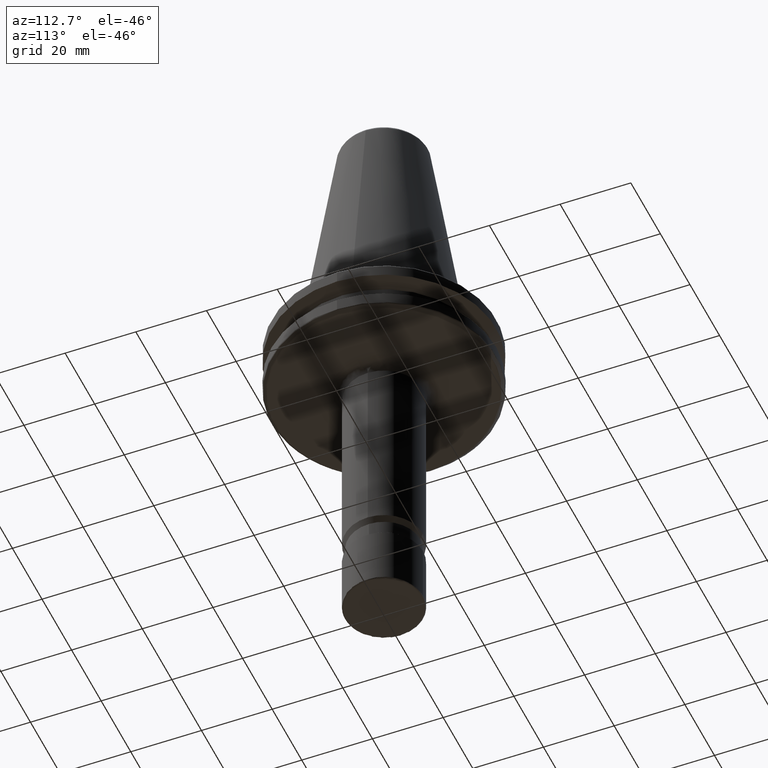
[diagram: clean part render]
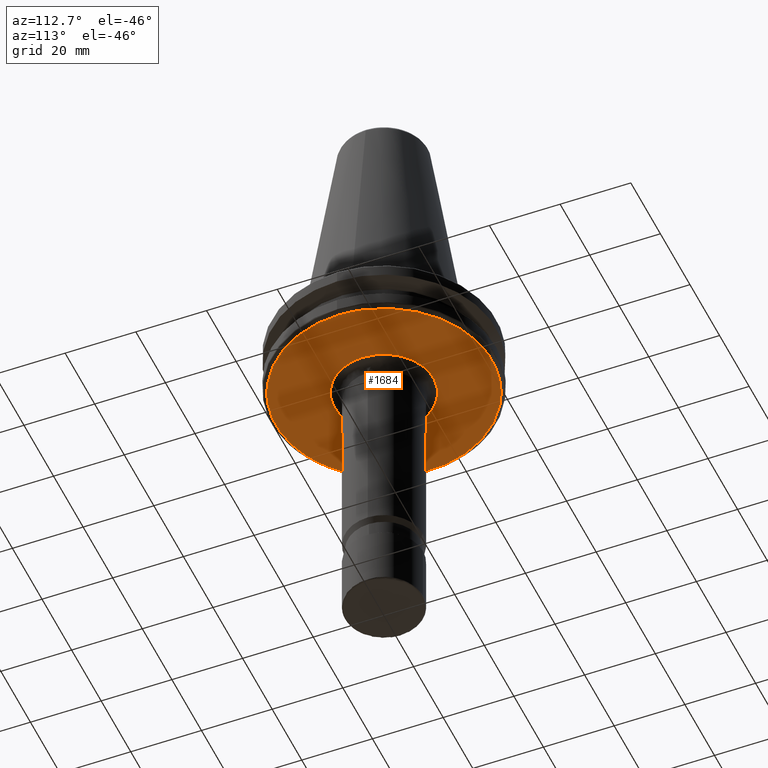
[diagram: same view with one face highlighted and labeled with its STEP entity id]
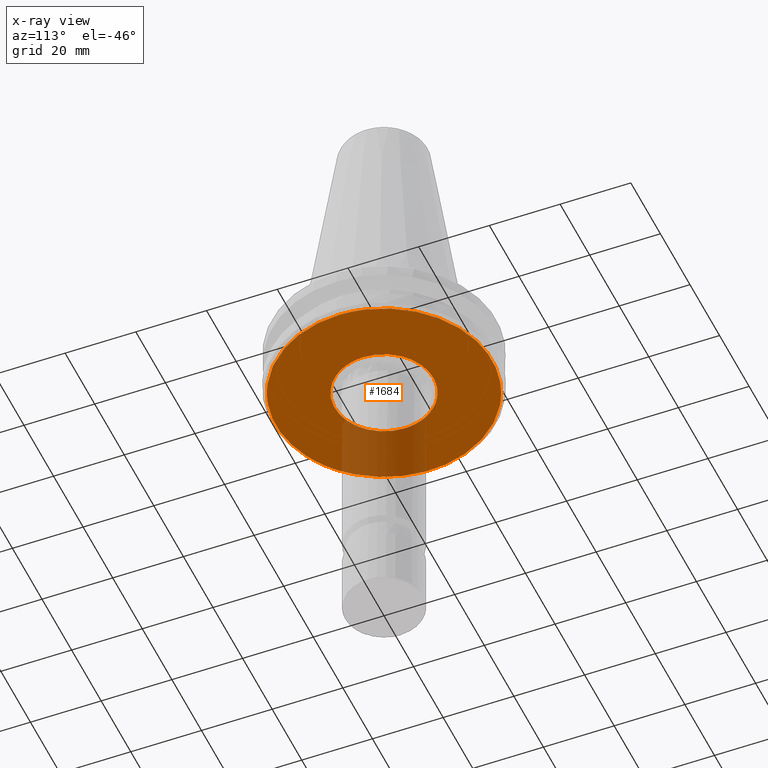
[diagram: x-ray of the same camera — body ghosted, the highlighted face saturated]
A machine part, auxiliary view. The second image highlights one B-rep face of the part: STEP entity #1684.
The next image is the same camera in x-ray: the body ghosted, the highlighted face saturated — about 16% of this face is hidden behind the body in this view.
In plain terms, the highlighted planar face has unit normal (0, 0, -1).
Its self-contained STEP definition (entity closure, byte-faithful):
#2 = CARTESIAN_POINT ( 'NONE',  ( -13.87019450631638900, 1.902049718686026300, -19.10000000000000500 ) ) ;
#9 = CARTESIAN_POINT ( 'NONE',  ( 29.17332800923709600, -9.183473244841252400, -19.10000000000000500 ) ) ;
#13 = CARTESIAN_POINT ( 'NONE',  ( -10.36286045715019600, -9.413392332090424500, -19.10000000000000100 ) ) ;
#16 = CARTESIAN_POINT ( 'NONE',  ( -25.71526498421205500, 16.55823951679402500, -19.09999999999999800 ) ) ;
#22 = CARTESIAN_POINT ( 'NONE',  ( 17.17196412950370600, -25.30897283564646500, -19.09999999999999400 ) ) ;
#24 = CARTESIAN_POINT ( 'NONE',  ( -8.158444783580272000, -11.37748629482766700, -19.09999999999999800 ) ) ;
#30 = CARTESIAN_POINT ( 'NONE',  ( -29.74670648688440300, 7.236641265598446000, -19.10000000000000900 ) ) ;
#35 = CARTESIAN_POINT ( 'NONE',  ( -6.707400549822712500, -12.28882747609662300, -19.10000000000000900 ) ) ;
#43 = EDGE_CURVE ( 'NONE', #2907, #1788, #1839, .T. ) ;
#48 = CARTESIAN_POINT ( 'NONE',  ( -2.316102617542180800, -13.81012906421380900, -19.10000000000001600 ) ) ;
#64 = B_SPLINE_CURVE_WITH_KNOTS ( 'NONE', 3,
 ( #1765, #380, #2764, #1701, #120, #1952, #908, #2475, #1176, #3021, #1446, #3277, #2208, #2754, #630, #2487, #918, #2002, #2551, #975, #2816, #1237, #434, #2279, #692, #3379, #2791, #3307, #3232, #2760, #1405, #3236, #1658, #76, #877, #2717, #1132, #2977, #2170, #2461, #889, #2723, #1140, #1920, #337, #2175, #600, #3242, #1665, #2456, #1136, #881 ),
 .UNSPECIFIED., .F., .F.,
 ( 4, 1, 1, 1, 1, 2, 2, 1, 1, 1, 1, 2, 2, 1, 1, 1, 2, 2, 2, 1, 1, 1, 2, 2, 1, 1, 1, 1, 2, 2, 1, 1, 1, 1, 2, 2, 4 ),
 ( 0.0000000000000000000, 0.06250000000000467700, 0.09375000000000713300, 0.1093750000000083000, 0.1171875000000088300, 0.1210937500000090800, 0.1250000000000093300, 0.1875000000000138500, 0.2187500000000161300, 0.2343750000000172600, 0.2421875000000177400, 0.2460937500000178700, 0.2500000000000180400, 0.3125000000000176000, 0.3437500000000173700, 0.3593750000000172600, 0.3671875000000172600, 0.3750000000000172100, 0.5000000000000142100, 0.5625000000000127700, 0.5937500000000121000, 0.6093750000000117700, 0.6171875000000115500, 0.6250000000000113200, 0.6875000000000095500, 0.7187500000000087700, 0.7343750000000084400, 0.7421875000000082200, 0.7460937500000081000, 0.7500000000000078800, 0.8125000000000060000, 0.8437500000000050000, 0.8593750000000044400, 0.8671875000000041100, 0.8710937500000040000, 0.8750000000000038900, 1.000000000000000000 ),
 .UNSPECIFIED. ) ;
#66 = CARTESIAN_POINT ( 'NONE',  ( 9.156202084737252300, -10.59079677476361100, -19.09999999999999800 ) ) ;
#70 = CARTESIAN_POINT ( 'NONE',  ( -13.43691934145410700, 3.930560815935971100, -19.10000000000000100 ) ) ;
#71 = CARTESIAN_POINT ( 'NONE',  ( -3.722201693391689900, 13.49913474461965600, -19.10000000000000500 ) ) ;
#72 = CARTESIAN_POINT ( 'NONE',  ( -18.49999998875182800, -24.35467712651041300, -19.10000000000724900 ) ) ;
#76 = CARTESIAN_POINT ( 'NONE',  ( 27.48018860499158900, 13.45218387191173000, -19.10000000000000500 ) ) ;
#81 = CARTESIAN_POINT ( 'NONE',  ( 20.93477230280700900, -22.29678867938766000, -19.10000000000000500 ) ) ;
#85 = CARTESIAN_POINT ( 'NONE',  ( 7.409682543820881800, 11.88381572843173300, -19.10000000000000100 ) ) ;
#87 = CARTESIAN_POINT ( 'NONE',  ( -27.57090976603759100, -13.23937562015610900, -19.09999999999999800 ) ) ;
#100 = CARTESIAN_POINT ( 'NONE',  ( 13.90998340567376900, 1.588377989081420000, -19.10000000000000100 ) ) ;
#107 = CARTESIAN_POINT ( 'NONE',  ( -29.27922980516683200, -8.860837647539003800, -19.10000000000000900 ) ) ;
#110 = CARTESIAN_POINT ( 'NONE',  ( 12.62213866011701800, 6.056621050364323200, -19.09999999999999400 ) ) ;
#112 = CARTESIAN_POINT ( 'NONE',  ( -19.79579140144705500, 23.32198606934987600, -19.10000000000000100 ) ) ;
#114 = CARTESIAN_POINT ( 'NONE',  ( -13.39046332791311200, 4.086541573744861800, -19.09999999999999800 ) ) ;
#116 = CARTESIAN_POINT ( 'NONE',  ( 25.36290541872264400, -17.17828129189628300, -19.10000000000000500 ) ) ;
#120 = CARTESIAN_POINT ( 'NONE',  ( 11.89015137862633700, 28.17969171426655400, -19.10000000000000100 ) ) ;
#139 = CARTESIAN_POINT ( 'NONE',  ( -2.458266889087128900, 13.78782115965905000, -19.09999999999999800 ) ) ;
#140 = VERTEX_POINT ( 'NONE', #2512 ) ;
#143 = CARTESIAN_POINT ( 'NONE',  ( -12.49804396901969900, 6.309072191028171500, -19.10000000000000900 ) ) ;
#148 = CARTESIAN_POINT ( 'NONE',  ( 7.999311379385150500, 11.48965298283067700, -19.10000000000000100 ) ) ;
#150 = CARTESIAN_POINT ( 'NONE',  ( -4.805097277082873900, 13.14975826909861900, -19.10000000000000500 ) ) ;
#153 = CARTESIAN_POINT ( 'NONE',  ( 30.24683899128103100, -4.531169570903215600, -19.10000000000000100 ) ) ;
#161 = CARTESIAN_POINT ( 'NONE',  ( -10.44427892204119200, 9.326010361596536000, -19.10000000000000500 ) ) ;
#170 = CARTESIAN_POINT ( 'NONE',  ( 13.13853108282288700, 4.863810809535058500, -19.09999999999999800 ) ) ;
#184 = CARTESIAN_POINT ( 'NONE',  ( 27.74772743227323000, -12.87576293435165900, -19.09999999999999800 ) ) ;
#186 = CARTESIAN_POINT ( 'NONE',  ( -30.53387617209921600, 1.757675352483217600, -19.10000000000001200 ) ) ;
#196 = CARTESIAN_POINT ( 'NONE',  ( 4.806239048004627500, 13.15224257235104600, -19.10000000000000900 ) ) ;
#206 = AXIS2_PLACEMENT_3D ( 'NONE', #2250, #409, #1219 ) ;
#210 = CARTESIAN_POINT ( 'NONE',  ( -12.57883289791491800, 6.145982777992967000, -19.10000000000000500 ) ) ;
#217 = CARTESIAN_POINT ( 'NONE',  ( 7.775932328565342100, -11.64228723145097000, -19.09999999999999800 ) ) ;
#226 = CARTESIAN_POINT ( 'NONE',  ( 3.305715666981399200, -13.60431573757647800, -19.10000000000000100 ) ) ;
#238 = CARTESIAN_POINT ( 'NONE',  ( 13.86569435559510000, -1.934767207544784800, -19.10000000000000100 ) ) ;
#251 = CARTESIAN_POINT ( 'NONE',  ( 13.33921194611340500, -4.252410688305282300, -19.10000000000000100 ) ) ;
#253 = CARTESIAN_POINT ( 'NONE',  ( -8.049999990076907300, -29.50589428771250400, -19.10000000000725600 ) ) ;
#260 = CARTESIAN_POINT ( 'NONE',  ( 11.83954440932815900, -7.494887792217078900, -19.10000000000000500 ) ) ;
#263 = CARTESIAN_POINT ( 'NONE',  ( -13.87316931708545700, 1.880232539236121000, -19.10000000000000500 ) ) ;
#264 = CARTESIAN_POINT ( 'NONE',  ( -11.46657754322399600, 8.044590776564440700, -19.10000000000000100 ) ) ;
#268 = CARTESIAN_POINT ( 'NONE',  ( -10.30320828978966200, -9.478652170441609600, -19.09999999999999800 ) ) ;
#272 = CARTESIAN_POINT ( 'NONE',  ( 27.42391408424605700, -13.54289364668368000, -19.10000000000000100 ) ) ;
#282 = CARTESIAN_POINT ( 'NONE',  ( 10.68076680287143900, -9.056583707257118500, -19.09999999999999800 ) ) ;
#293 = CARTESIAN_POINT ( 'NONE',  ( -6.342564730461603500, -12.48397714306705300, -19.10000000000000500 ) ) ;
#301 = CARTESIAN_POINT ( 'NONE',  ( -1.164762836666204200, -13.96366059549640700, -19.10000000000000500 ) ) ;
#315 = CARTESIAN_POINT ( 'NONE',  ( -13.45226805944122400, -3.877701979167554700, -19.10000000000000500 ) ) ;
#320 = CARTESIAN_POINT ( 'NONE',  ( -12.73316352780018700, -5.821007116466709900, -19.09999999999999800 ) ) ;
#327 = CARTESIAN_POINT ( 'NONE',  ( -13.42601507327051100, 3.967649351651009800, -19.10000000000000100 ) ) ;
#328 = CARTESIAN_POINT ( 'NONE',  ( -3.377141883909002800, 13.58675477374876600, -19.10000000000000100 ) ) ;
#337 = CARTESIAN_POINT ( 'NONE',  ( 30.09805378459022100, 5.439085606038046800, -19.09999999999999800 ) ) ;
#341 = CARTESIAN_POINT ( 'NONE',  ( 30.08926266376380500, -5.542438332991668700, -19.10000000000000100 ) ) ;
#344 = CARTESIAN_POINT ( 'NONE',  ( 7.749281199660556400, 11.66284730174859300, -19.10000000000000500 ) ) ;
#357 = CARTESIAN_POINT ( 'NONE',  ( -13.93934365640826900, -1.318066439066382500, -19.10000000000000500 ) ) ;
#364 = CARTESIAN_POINT ( 'NONE',  ( 12.59513548492082100, 6.112503177033866000, -19.10000000000000500 ) ) ;
#366 = CARTESIAN_POINT ( 'NONE',  ( -29.54007634397394700, -7.966399750949094000, -19.09999999999999800 ) ) ;
#380 = CARTESIAN_POINT ( 'NONE',  ( 8.816970203226560400, 29.29664423385124600, -19.10000000000000500 ) ) ;
#382 = CARTESIAN_POINT ( 'NONE',  ( -30.55546310677042900, 1.346121331620803200, -19.09999999999999800 ) ) ;
#385 = CARTESIAN_POINT ( 'NONE',  ( -8.857159757274169800, 10.84346154780900000, -19.10000000000000500 ) ) ;
#395 = CARTESIAN_POINT ( 'NONE',  ( -3.164982404183485100, 13.63774737687238100, -19.10000000000000100 ) ) ;
#401 = CARTESIAN_POINT ( 'NONE',  ( -12.22759838157198500, 6.824536630555767800, -19.10000000000000100 ) ) ;
#408 = CARTESIAN_POINT ( 'NONE',  ( 8.078551725905862600, 11.43407227308194200, -19.09999999999999800 ) ) ;
#409 = DIRECTION ( 'NONE',  ( -0.0000000000000000000, -0.0000000000000000000, -1.000000000000000000 ) ) ;
#421 = CARTESIAN_POINT ( 'NONE',  ( 16.90584652483549600, -25.48715891141393900, -19.10000000000000500 ) ) ;
#422 = CARTESIAN_POINT ( 'NONE',  ( 13.60127971256941000, 3.325682640450064600, -19.09999999999999400 ) ) ;
#428 = CARTESIAN_POINT ( 'NONE',  ( -10.94445488327260000, 8.731782042556570600, -19.09999999999999800 ) ) ;
#434 = CARTESIAN_POINT ( 'NONE',  ( 20.70117177267408700, 22.51384226277101800, -19.10000000000000100 ) ) ;
#436 = CARTESIAN_POINT ( 'NONE',  ( 0.5829673818581285700, 13.99997709636030200, -19.10000000000000100 ) ) ;
#446 = CARTESIAN_POINT ( 'NONE',  ( 9.531905429799634200, 10.25525856999881200, -19.10000000000000100 ) ) ;
#467 = CARTESIAN_POINT ( 'NONE',  ( 5.201397601936414500, 12.99808607572735900, -19.10000000000001200 ) ) ;
#478 = CARTESIAN_POINT ( 'NONE',  ( 11.05651971481519300, 8.591321848575182300, -19.10000000000000100 ) ) ;
#479 = CARTESIAN_POINT ( 'NONE',  ( -7.775932328560986500, 11.64228723145399200, -19.10000000000000900 ) ) ;
#481 = CARTESIAN_POINT ( 'NONE',  ( 6.528595523826218100, -12.38474622002781800, -19.10000000000000100 ) ) ;
#495 = CARTESIAN_POINT ( 'NONE',  ( 3.722201693382291700, -13.49913474462273500, -19.10000000000000500 ) ) ;
#503 = ORIENTED_EDGE ( 'NONE', *, *, #1812, .T. ) ;
#505 = ORIENTED_EDGE ( 'NONE', *, *, #1081, .T. ) ;
#510 = CARTESIAN_POINT ( 'NONE',  ( 13.87316931708519800, -1.880232539237060000, -19.10000000000000100 ) ) ;
#514 = CARTESIAN_POINT ( 'NONE',  ( 8.049999991614372500, -29.50589428700349300, -19.10000000000724900 ) ) ;
#516 = CARTESIAN_POINT ( 'NONE',  ( 12.57883289791504900, -6.145982777992530000, -19.10000000000000500 ) ) ;
#517 = DIRECTION ( 'NONE',  ( -0.0000000000000000000, -0.0000000000000000000, -1.000000000000000000 ) ) ;
#526 = CARTESIAN_POINT ( 'NONE',  ( 11.12778686417240900, -8.495480441625561600, -19.10000000000000500 ) ) ;
#528 = CARTESIAN_POINT ( 'NONE',  ( -15.17448918110286200, 26.55735481232567400, -19.10000000000000100 ) ) ;
#531 = CARTESIAN_POINT ( 'NONE',  ( -13.95870206348595500, 1.241861874347064900, -19.10000000000000900 ) ) ;
#542 = CARTESIAN_POINT ( 'NONE',  ( -9.850031153959207600, -9.954247996654597600, -19.09999999999999800 ) ) ;
#554 = CARTESIAN_POINT ( 'NONE',  ( 10.19651887728577200, -9.593326984117425100, -19.10000000000000100 ) ) ;
#555 = CARTESIAN_POINT ( 'NONE',  ( -21.09312834781081500, 22.15091719726067900, -19.09999999999999800 ) ) ;
#561 = CARTESIAN_POINT ( 'NONE',  ( -7.002590216990145500, -12.12418689544444700, -19.09999999999999800 ) ) ;
#569 = CARTESIAN_POINT ( 'NONE',  ( 0.2914836909309104200, -14.00001144979583500, -19.10000000000000900 ) ) ;
#592 = CARTESIAN_POINT ( 'NONE',  ( 9.394133895978741900, -10.38331381235762600, -19.10000000000000500 ) ) ;
#596 = CARTESIAN_POINT ( 'NONE',  ( -4.132430612442479200, 13.38154095646630800, -19.10000000000000500 ) ) ;
#597 = CARTESIAN_POINT ( 'NONE',  ( -14.61261959089497600, -26.87550080332260200, -19.10000000000000100 ) ) ;
#600 = CARTESIAN_POINT ( 'NONE',  ( 30.18427195433352800, 4.930794882819840900, -19.09999999999999800 ) ) ;
#603 = CARTESIAN_POINT ( 'NONE',  ( 18.08532367135412100, -24.67070505150718100, -19.09999999999999800 ) ) ;
#609 = CARTESIAN_POINT ( 'NONE',  ( 7.002590216979229800, 12.12418689544908700, -19.10000000000000100 ) ) ;
#618 = CARTESIAN_POINT ( 'NONE',  ( 13.89360941968721800, 1.723427841727852600, -19.10000000000000100 ) ) ;
#622 = CARTESIAN_POINT ( 'NONE',  ( -13.52348002842328300, -3.623423034698007400, -19.09999999999999800 ) ) ;
#626 = CARTESIAN_POINT ( 'NONE',  ( 26.28566937104589800, -15.73006002354229000, -19.10000000000000100 ) ) ;
#630 = CARTESIAN_POINT ( 'NONE',  ( 16.68977817311322600, 25.62916937437067600, -19.10000000000000500 ) ) ;
#632 = CARTESIAN_POINT ( 'NONE',  ( -20.68074044701192100, 22.53337490492449600, -19.10000000000000100 ) ) ;
#642 = CARTESIAN_POINT ( 'NONE',  ( -9.670185699719155500, 10.12905203566012900, -19.09999999999999800 ) ) ;
#646 = CARTESIAN_POINT ( 'NONE',  ( 17.47881727887799700, -25.09924766268192200, -19.10000000000000100 ) ) ;
#651 = CARTESIAN_POINT ( 'NONE',  ( 21.93714485620064300, -21.31885163476374600, -19.09999999999999800 ) ) ;
#658 = CARTESIAN_POINT ( 'NONE',  ( 2.883757012372400600, 13.70285579274888300, -19.10000000000000500 ) ) ;
#667 = CARTESIAN_POINT ( 'NONE',  ( -24.44695537471495000, 18.39868378280719300, -19.10000000000000100 ) ) ;
#672 = CARTESIAN_POINT ( 'NONE',  ( 9.252630499697755100, 10.50665307429255400, -19.10000000000000500 ) ) ;
#676 = CARTESIAN_POINT ( 'NONE',  ( -5.331221713535626300, 12.94820046717500100, -19.10000000000000500 ) ) ;
#678 = CARTESIAN_POINT ( 'NONE',  ( -30.38560333956988300, 3.592590877250190700, -19.10000000000000100 ) ) ;
#681 = CARTESIAN_POINT ( 'NONE',  ( 13.48245005673748400, 3.771856945821213000, -19.10000000000000100 ) ) ;
#686 = CARTESIAN_POINT ( 'NONE',  ( -6.341189093824361600, 12.48175428091381900, -19.10000000000000500 ) ) ;
#692 = CARTESIAN_POINT ( 'NONE',  ( 22.11794905584693900, 21.19364260620017100, -19.10000000000000100 ) ) ;
#711 = CARTESIAN_POINT ( 'NONE',  ( -0.2914836909290649000, 14.00001144979583500, -19.10000000000000100 ) ) ;
#727 = CARTESIAN_POINT ( 'NONE',  ( 5.523321351448515800, 12.86573239425254500, -19.09999999999999400 ) ) ;
#741 = CARTESIAN_POINT ( 'NONE',  ( 11.23327407206312700, 8.355494633545605500, -19.10000000000000500 ) ) ;
#742 = CARTESIAN_POINT ( 'NONE',  ( -7.178625550177348400, 12.02480031464759100, -19.10000000000000500 ) ) ;
#746 = CIRCLE ( 'NONE', #2537, 30.58431456898492200 ) ;
#752 = CARTESIAN_POINT ( 'NONE',  ( 5.715431561765311300, -12.78554393726402700, -19.09999999999999800 ) ) ;
#763 = CARTESIAN_POINT ( 'NONE',  ( -12.62213866011586200, -6.056621050367250600, -19.09999999999999400 ) ) ;
#771 = CARTESIAN_POINT ( 'NONE',  ( -27.70273029504650700, 12.96104156432513800, -19.10000000000000500 ) ) ;
#773 = CARTESIAN_POINT ( 'NONE',  ( 13.83233450678003100, -2.163383893895633600, -19.09999999999999800 ) ) ;
#786 = CARTESIAN_POINT ( 'NONE',  ( 12.99569472290052000, -5.233503724584436700, -19.09999999999999800 ) ) ;
#791 = ORIENTED_EDGE ( 'NONE', *, *, #979, .T. ) ;
#801 = CARTESIAN_POINT ( 'NONE',  ( -26.47626622431639400, -15.32103542138922800, -19.10000000000000900 ) ) ;
#804 = CARTESIAN_POINT ( 'NONE',  ( -11.26633694897633800, -8.310861380018137000, -19.10000000000000500 ) ) ;
#813 = CARTESIAN_POINT ( 'NONE',  ( -2.883757012376557700, -13.70285579274853500, -19.10000000000000900 ) ) ;
#818 = CARTESIAN_POINT ( 'NONE',  ( 30.58431457497475800, -0.7925095534447708100, -19.10000000000000900 ) ) ;
#819 = CARTESIAN_POINT ( 'NONE',  ( -9.369729972260589800, -10.40264237960631500, -19.10000000000000100 ) ) ;
#832 = CARTESIAN_POINT ( 'NONE',  ( 10.26167824832935300, -9.523592966065782800, -19.09999999999999800 ) ) ;
#833 = DIRECTION ( 'NONE',  ( -1.000000000000000000, 0.0000000000000000000, 0.0000000000000000000 ) ) ;
#834 = CARTESIAN_POINT ( 'NONE',  ( -19.07878278284826800, 23.91821116497348100, -19.09999999999999800 ) ) ;
#839 = CARTESIAN_POINT ( 'NONE',  ( 17.03968421838553800, -25.39788088135495400, -19.10000000000000500 ) ) ;
#841 = CARTESIAN_POINT ( 'NONE',  ( -23.03477351408325900, 20.11978846607000500, -19.10000000000000500 ) ) ;
#846 = CARTESIAN_POINT ( 'NONE',  ( 2.458266889080651400, -13.78782115965945800, -19.09999999999999800 ) ) ;
#848 = CARTESIAN_POINT ( 'NONE',  ( -11.60554830621374300, 28.29748135329186500, -19.09999999999999400 ) ) ;
#850 = ORIENTED_EDGE ( 'NONE', *, *, #2039, .T. ) ;
#860 = CARTESIAN_POINT ( 'NONE',  ( -5.138062878864950300, -13.02326011005788300, -19.10000000000000500 ) ) ;
#865 = CARTESIAN_POINT ( 'NONE',  ( -20.29118582647395300, 22.88382724300527100, -19.09999999999999800 ) ) ;
#877 = CARTESIAN_POINT ( 'NONE',  ( 28.02300496840013700, 12.30366681236650100, -19.10000000000000500 ) ) ;
#881 = CARTESIAN_POINT ( 'NONE',  ( 30.58431456898492200, 0.0000000000000000000, -19.10000000001087600 ) ) ;
#883 = CARTESIAN_POINT ( 'NONE',  ( -15.67283804517485800, -26.26447118892689800, -19.10000000000000100 ) ) ;
#889 = CARTESIAN_POINT ( 'NONE',  ( 29.04650783698076200, 9.576183285987813300, -19.10000000000000500 ) ) ;
#894 = AXIS2_PLACEMENT_3D ( 'NONE', #3192, #2403, #833 ) ;
#897 = CARTESIAN_POINT ( 'NONE',  ( 13.99999999858502500, 0.3110257572653067300, -19.09999999999999800 ) ) ;
#900 = CARTESIAN_POINT ( 'NONE',  ( -30.13111979072119300, 5.248326274629538300, -19.10000000000000500 ) ) ;
#908 = CARTESIAN_POINT ( 'NONE',  ( 12.34560709781420900, 27.98193647631930900, -19.09999999999999800 ) ) ;
#912 = CARTESIAN_POINT ( 'NONE',  ( -13.46140253849050500, -3.845964829889311000, -19.10000000000000100 ) ) ;
#918 = CARTESIAN_POINT ( 'NONE',  ( 16.81837834243302200, 25.54496456861356500, -19.09999999999999800 ) ) ;
#933 = CARTESIAN_POINT ( 'NONE',  ( -9.181897645518978000, 10.56852412847448300, -19.09999999999999800 ) ) ;
#935 = CARTESIAN_POINT ( 'NONE',  ( -16.83048694819959600, 25.54395308593886300, -19.10000000000000500 ) ) ;
#938 = EDGE_CURVE ( 'NONE', #2111, #1704, #1173, .T. ) ;
#943 = CARTESIAN_POINT ( 'NONE',  ( 3.995516281981645000, 13.41851350840480400, -19.09999999999999800 ) ) ;
#951 = CARTESIAN_POINT ( 'NONE',  ( 10.83415540342651300, 8.872518153633292200, -19.09999999999999800 ) ) ;
#960 = CARTESIAN_POINT ( 'NONE',  ( 13.45226805944135900, 3.877701979166623800, -19.10000000000000500 ) ) ;
#967 = CARTESIAN_POINT ( 'NONE',  ( -11.12778686417057700, 8.495480441627512000, -19.10000000000000100 ) ) ;
#975 = CARTESIAN_POINT ( 'NONE',  ( 19.74925528233417500, 23.35999809239166000, -19.10000000000000500 ) ) ;
#979 = EDGE_CURVE ( 'NONE', #2903, #2907, #64, .T. ) ;
#983 = CARTESIAN_POINT ( 'NONE',  ( -13.66703007547338300, 3.070895171030544100, -19.09999999999999800 ) ) ;
#994 = CARTESIAN_POINT ( 'NONE',  ( 29.84932141483913900, -6.754033514192946600, -19.09999999999999800 ) ) ;
#998 = CARTESIAN_POINT ( 'NONE',  ( 6.707400549818813400, 12.28882747609828600, -19.10000000000000100 ) ) ;
#1007 = CARTESIAN_POINT ( 'NONE',  ( -27.76734684218245500, -12.82092445253425500, -19.10000000000000500 ) ) ;
#1012 = CARTESIAN_POINT ( 'NONE',  ( 8.501118625466514100, -11.12881869393736700, -19.10000000000000100 ) ) ;
#1013 = CARTESIAN_POINT ( 'NONE',  ( 11.31572006806968600, 8.243783611835837600, -19.09999999999999400 ) ) ;
#1017 = CARTESIAN_POINT ( 'NONE',  ( 6.341189093826571400, -12.48175428091341600, -19.10000000000000100 ) ) ;
#1026 = CARTESIAN_POINT ( 'NONE',  ( -12.59513548492049000, -6.112503177034723100, -19.10000000000000100 ) ) ;
#1042 = CARTESIAN_POINT ( 'NONE',  ( 13.43691934145425100, -3.930560815935495900, -19.10000000000001200 ) ) ;
#1044 = CARTESIAN_POINT ( 'NONE',  ( -29.39811230443128300, 8.543063530161694200, -19.10000000000000500 ) ) ;
#1053 = CARTESIAN_POINT ( 'NONE',  ( 12.55982638876216500, -6.184733328577493700, -19.10000000000000500 ) ) ;
#1060 = CARTESIAN_POINT ( 'NONE',  ( -11.21793503437584300, -8.376084768015770600, -19.10000000000000100 ) ) ;
#1062 = CARTESIAN_POINT ( 'NONE',  ( -29.07500021244794700, -9.489263908052745200, -19.10000000000000100 ) ) ;
#1067 = ORIENTED_EDGE ( 'NONE', *, *, #43, .T. ) ;
#1070 = CARTESIAN_POINT ( 'NONE',  ( -30.56077312578488800, -1.369324122900162000, -19.10000000000000100 ) ) ;
#1073 = CARTESIAN_POINT ( 'NONE',  ( -9.252630499693856000, -10.50665307429635900, -19.10000000000001200 ) ) ;
#1081 = EDGE_CURVE ( 'NONE', #1704, #2111, #3181, .T. ) ;
#1083 = CARTESIAN_POINT ( 'NONE',  ( 0.0000000000000000000, 0.0000000000000000000, -19.10000000001087300 ) ) ;
#1090 = CARTESIAN_POINT ( 'NONE',  ( 9.980118876294730200, -9.819612591153219900, -19.10000000000000900 ) ) ;
#1092 = CARTESIAN_POINT ( 'NONE',  ( -29.06384811061237300, -9.523358886133126000, -19.10000000000000900 ) ) ;
#1094 = CARTESIAN_POINT ( 'NONE',  ( 14.00000000217723800, 0.0000000000000000000, -19.09999999992663100 ) ) ;
#1095 = CARTESIAN_POINT ( 'NONE',  ( -11.74601161218760100, -28.25583148850655100, -19.10000000000000900 ) ) ;
#1100 = CARTESIAN_POINT ( 'NONE',  ( 1.163435989349808100, -13.95235037433007000, -19.10000000000000500 ) ) ;
#1102 = CARTESIAN_POINT ( 'NONE',  ( -26.11078042632109900, -15.92571836378846900, -19.09999999999999800 ) ) ;
#1109 = CARTESIAN_POINT ( 'NONE',  ( -8.078551725906972800, -11.43407227308017200, -19.09999999999999800 ) ) ;
#1110 = CARTESIAN_POINT ( 'NONE',  ( -13.75007331693200100, 27.32513545430416700, -19.10000000000000500 ) ) ;
#1114 = CARTESIAN_POINT ( 'NONE',  ( -13.32885564223925300, -4.301118215267646100, -19.10000000000000100 ) ) ;
#1115 = CARTESIAN_POINT ( 'NONE',  ( 8.049999991612852000, 29.50589428728038000, -19.10000000000724900 ) ) ;
#1126 = CARTESIAN_POINT ( 'NONE',  ( -10.13205364927367200, 9.661692692674130000, -19.10000000000000500 ) ) ;
#1132 = CARTESIAN_POINT ( 'NONE',  ( 28.82396549386606200, 10.23034996342968800, -19.09999999999999800 ) ) ;
#1136 = CARTESIAN_POINT ( 'NONE',  ( 30.58431457494582200, 1.585365217409139900, -19.10000000000000100 ) ) ;
#1137 = CARTESIAN_POINT ( 'NONE',  ( -16.92025831504780300, -25.49621440710125600, -19.10000000000000100 ) ) ;
#1140 = CARTESIAN_POINT ( 'NONE',  ( 29.65680613963100900, 7.554658158974360700, -19.09999999999999800 ) ) ;
#1159 = CARTESIAN_POINT ( 'NONE',  ( 13.87756610177010500, 1.847503412153636900, -19.10000000000000900 ) ) ;
#1165 = CARTESIAN_POINT ( 'NONE',  ( -13.87756610177013700, -1.847503412153400200, -19.10000000000000500 ) ) ;
#1169 = CARTESIAN_POINT ( 'NONE',  ( 13.83425390532537100, -27.28220236736437700, -19.09999999999999800 ) ) ;
#1171 = B_SPLINE_CURVE_WITH_KNOTS ( 'NONE', 3,
 ( #2589, #1187, #2671, #2946, #1276, #1095, #1361, #2854, #597, #2720, #883, #2457, #1137, #2974, #72 ),
 .UNSPECIFIED., .F., .F.,
 ( 4, 2, 2, 2, 1, 2, 2, 4 ),
 ( 0.0000000000000000000, 0.1249999999999998300, 0.2499999999999996700, 0.4999999999999993300, 0.6249999999999990000, 0.6874999999999990000, 0.7499999999999993300, 1.000000000000000000 ),
 .UNSPECIFIED. ) ;
#1173 = B_SPLINE_CURVE_WITH_KNOTS ( 'NONE', 3,
 ( #2837, #897, #1557, #1499, #100, #618, #1936, #1946, #2745, #1159, #3006, #3076, #422, #2262, #681, #1757, #960, #2804, #1228, #3378, #170, #1497, #3321, #1995, #110, #3269, #364, #1681, #1514, #1777, #2006, #2860, #1013, #2596, #741, #2330, #478, #951, #2794, #2996, #1424, #1217, #2528, #3061, #1487, #446, #2797, #2299, #672, #1480, #3300, #1726, #3123, #1985, #408, #2249, #148, #344, #85, #609, #1923, #998, #2507, #2807, #2586, #727, #2319, #467, #2040, #196, #2514, #943, #2986, #1413, #2784, #658, #1199, #3050, #3090, #436, #711, #2242, #3043, #1468, #3286, #2843, #139, #1966, #395, #1716, #328, #71, #596, #1916, #150, #3318, #1752, #676, #2535, #2272, #686, #2547, #1492, #1285, #742, #2050, #479, #2331, #2024, #2532, #1186, #1956, #385, #2228, #2031, #2503, #933, #2770, #642, #1400, #1126, #1652, #2973, #1233, #161, #1999, #428, #1565, #967, #2810, #3393, #264, #1977, #401, #1719, #143, #1548, #3367, #1797, #210, #1767, #1182, #3038, #1688, #114, #1948, #327, #1915, #70, #2832, #983, #2558, #1521, #3094, #1248, #2, #263, #1597, #531, #1845, #2108 ),
 .UNSPECIFIED., .F., .F.,
 ( 4, 1, 1, 1, 1, 1, 2, 2, 1, 1, 1, 1, 1, 2, 2, 1, 1, 1, 1, 1, 2, 2, 1, 1, 1, 1, 2, 2, 1, 1, 1, 2, 2, 1, 1, 1, 2, 2, 1, 1, 1, 2, 2, 1, 1, 2, 2, 1, 1, 2, 2, 1, 2, 2, 2, 2, 2, 1, 2, 2, 1, 1, 2, 2, 1, 1, 2, 2, 1, 1, 2, 2, 1, 1, 1, 2, 2, 1, 1, 1, 2, 2, 1, 1, 1, 2, 2, 1, 1, 1, 2, 2, 1, 1, 1, 1, 1, 2, 2, 1, 1, 1, 1, 1, 2, 2, 1, 1, 1, 1, 1, 2, 2, 4 ),
 ( 0.0000000000000000000, 0.03124999999999836200, 0.04687499999999753000, 0.05468749999999710600, 0.05859374999999689800, 0.06054687499999680100, 0.06152343749999676000, 0.06249999999999672500, 0.09374999999999536500, 0.1093749999999947000, 0.1171874999999943200, 0.1210937499999941300, 0.1230468749999940200, 0.1240234374999939900, 0.1249999999999939500, 0.1562499999999942000, 0.1718749999999943100, 0.1796874999999943900, 0.1835937499999944200, 0.1855468749999944200, 0.1865234374999944200, 0.1874999999999944200, 0.2187499999999955300, 0.2343749999999960300, 0.2421874999999963900, 0.2460937499999965300, 0.2480468749999965900, 0.2499999999999966100, 0.2656249999999971100, 0.2734374999999973400, 0.2773437499999973900, 0.2792968749999974500, 0.2812499999999975000, 0.2968749999999974500, 0.3046874999999972800, 0.3085937499999972800, 0.3105468749999972200, 0.3124999999999971700, 0.3281249999999968900, 0.3359374999999967800, 0.3398437499999967200, 0.3417968749999967200, 0.3437499999999967200, 0.3593749999999969500, 0.3671874999999970600, 0.3710937499999971700, 0.3749999999999972200, 0.3906249999999976100, 0.3984374999999978400, 0.4023437499999979500, 0.4062499999999980600, 0.4218749999999983900, 0.4296874999999985000, 0.4374999999999986700, 0.4531249999999988900, 0.4687499999999991700, 0.4999999999999997800, 0.5156250000000001100, 0.5234375000000002200, 0.5312500000000003300, 0.5468750000000006700, 0.5546875000000007800, 0.5585937500000007800, 0.5625000000000007800, 0.5781250000000011100, 0.5859375000000012200, 0.5898437500000014400, 0.5937500000000015500, 0.6093750000000017800, 0.6171875000000020000, 0.6210937500000021100, 0.6250000000000022200, 0.6406250000000024400, 0.6484375000000025500, 0.6523437500000025500, 0.6542968750000025500, 0.6562500000000025500, 0.6718750000000028900, 0.6796875000000030000, 0.6835937500000031100, 0.6855468750000032200, 0.6875000000000033300, 0.7031250000000037700, 0.7109375000000038900, 0.7148437500000040000, 0.7167968750000041100, 0.7187500000000042200, 0.7343750000000045500, 0.7421875000000048800, 0.7460937500000048800, 0.7480468750000048800, 0.7500000000000048800, 0.7812500000000053300, 0.7968750000000055500, 0.8046875000000056600, 0.8085937500000057700, 0.8105468750000057700, 0.8115234375000057700, 0.8125000000000056600, 0.8437500000000053300, 0.8593750000000051100, 0.8671875000000051100, 0.8710937500000050000, 0.8730468750000050000, 0.8740234375000048800, 0.8750000000000048800, 0.9062500000000041100, 0.9218750000000037700, 0.9296875000000035500, 0.9335937500000034400, 0.9355468750000033300, 0.9365234375000033300, 0.9375000000000032200, 1.000000000000000000 ),
 .UNSPECIFIED. ) ;
#1176 = CARTESIAN_POINT ( 'NONE',  ( 12.47999539829934300, 27.92226052439762500, -19.10000000000000100 ) ) ;
#1182 = CARTESIAN_POINT ( 'NONE',  ( -12.99569472290764700, 5.233503724559980700, -19.09999999999999800 ) ) ;
#1186 = CARTESIAN_POINT ( 'NONE',  ( -8.186012949324846100, 11.36034870853399100, -19.10000000000001200 ) ) ;
#1187 = CARTESIAN_POINT ( 'NONE',  ( -8.520441181211532800, -29.37754531093619200, -19.10000000000000100 ) ) ;
#1194 = CARTESIAN_POINT ( 'NONE',  ( 13.99999999858502500, -0.6223928478897156100, -19.10000000000000100 ) ) ;
#1199 = CARTESIAN_POINT ( 'NONE',  ( 2.316102617538029500, 13.81012906421415900, -19.10000000000000500 ) ) ;
#1217 = CARTESIAN_POINT ( 'NONE',  ( 10.32252545782308300, 9.457606251294086200, -19.10000000000000500 ) ) ;
#1219 = DIRECTION ( 'NONE',  ( -1.000000000000000000, 0.0000000000000000000, 0.0000000000000000000 ) ) ;
#1228 = CARTESIAN_POINT ( 'NONE',  ( 13.44347325977903100, 3.908090055383693700, -19.10000000000000500 ) ) ;
#1233 = CARTESIAN_POINT ( 'NONE',  ( -10.26167824832985100, 9.523592966065262300, -19.10000000000000500 ) ) ;
#1235 = CARTESIAN_POINT ( 'NONE',  ( -26.05774955764592700, -16.01255559727071900, -19.09999999999999400 ) ) ;
#1237 = CARTESIAN_POINT ( 'NONE',  ( 20.54427895056483100, 22.65711424667308500, -19.10000000000000100 ) ) ;
#1240 = CARTESIAN_POINT ( 'NONE',  ( -25.43783131789556200, 16.98009862101236000, -19.10000000000000500 ) ) ;
#1248 = CARTESIAN_POINT ( 'NONE',  ( -13.86569435559602700, 1.934767207541564500, -19.10000000000000500 ) ) ;
#1251 = CARTESIAN_POINT ( 'NONE',  ( -12.06714488817263800, 28.10566288098283700, -19.09999999999999800 ) ) ;
#1255 = CARTESIAN_POINT ( 'NONE',  ( -4.403951716143797800, -13.29465382039787100, -19.09999999999999400 ) ) ;
#1268 = CARTESIAN_POINT ( 'NONE',  ( -17.45158351693324800, 25.11660753381479700, -19.10000000000000900 ) ) ;
#1276 = CARTESIAN_POINT ( 'NONE',  ( -10.37187995409856900, -28.77609755566424000, -19.10000000000000500 ) ) ;
#1278 = CARTESIAN_POINT ( 'NONE',  ( 7.859947740938611800, -11.58543522740202300, -19.10000000000000500 ) ) ;
#1285 = CARTESIAN_POINT ( 'NONE',  ( -6.826794371948325100, 12.22572099629263000, -19.10000000000000100 ) ) ;
#1292 = CARTESIAN_POINT ( 'NONE',  ( 5.006817212484128800, -13.07427063635123700, -19.10000000000000500 ) ) ;
#1307 = CARTESIAN_POINT ( 'NONE',  ( -12.38960221635758600, -6.534185748997289900, -19.09999999999999800 ) ) ;
#1314 = CARTESIAN_POINT ( 'NONE',  ( 13.66703007546562500, -3.070895171057114800, -19.09999999999999400 ) ) ;
#1318 = CARTESIAN_POINT ( 'NONE',  ( -18.49999998875182800, -24.35467712651041300, -19.10000000000724900 ) ) ;
#1324 = CARTESIAN_POINT ( 'NONE',  ( 12.22759838156411000, -6.824536630563670800, -19.09999999999999800 ) ) ;
#1325 = EDGE_CURVE ( 'NONE', #140, #1794, #3335, .T. ) ;
#1326 = CARTESIAN_POINT ( 'NONE',  ( 0.0000000000000000000, 0.0000000000000000000, -19.10000000001087300 ) ) ;
#1340 = CARTESIAN_POINT ( 'NONE',  ( -10.83415540340948300, -8.872518153654610300, -19.10000000000000100 ) ) ;
#1342 = CARTESIAN_POINT ( 'NONE',  ( -28.38806391368287800, 11.41594752566162000, -19.09999999999999800 ) ) ;
#1348 = CARTESIAN_POINT ( 'NONE',  ( -9.008916577824292600, -10.71950399578601100, -19.10000000000000500 ) ) ;
#1353 = DIRECTION ( 'NONE',  ( -1.000000000000000000, 0.0000000000000000000, 0.0000000000000000000 ) ) ;
#1357 = CARTESIAN_POINT ( 'NONE',  ( -5.968744660624365000, -12.66926854731183900, -19.10000000000000100 ) ) ;
#1358 = CARTESIAN_POINT ( 'NONE',  ( -28.92174171831225100, -9.948490858474187300, -19.09999999999999800 ) ) ;
#1360 = CARTESIAN_POINT ( 'NONE',  ( -14.32188350899409600, 27.02379119132088500, -19.10000000000000500 ) ) ;
#1361 = CARTESIAN_POINT ( 'NONE',  ( -12.64431552292191400, -27.86539064646664000, -19.10000000000000900 ) ) ;
#1371 = CARTESIAN_POINT ( 'NONE',  ( -0.5829673818618201800, -13.99997709636030100, -19.10000000000000100 ) ) ;
#1374 = CARTESIAN_POINT ( 'NONE',  ( -30.00555013499592500, -5.921884131213951200, -19.10000000000000900 ) ) ;
#1376 = CARTESIAN_POINT ( 'NONE',  ( 29.07910570355134200, -9.476743555077298700, -19.10000000000000500 ) ) ;
#1384 = CARTESIAN_POINT ( 'NONE',  ( -7.999311379384114900, -11.48965298283111900, -19.10000000000000100 ) ) ;
#1390 = CARTESIAN_POINT ( 'NONE',  ( -12.87517172004442800, -5.504562226840735500, -19.10000000000000900 ) ) ;
#1400 = CARTESIAN_POINT ( 'NONE',  ( -9.980118876280309700, 9.819612591168926500, -19.09999999999999800 ) ) ;
#1402 = CARTESIAN_POINT ( 'NONE',  ( -25.57755863808982300, 16.76889805454825200, -19.10000000000000500 ) ) ;
#1405 = CARTESIAN_POINT ( 'NONE',  ( 26.88334547347012600, 14.58418010297947200, -19.10000000000000500 ) ) ;
#1413 = CARTESIAN_POINT ( 'NONE',  ( 3.586314924047060000, 13.53362853226973600, -19.10000000000000100 ) ) ;
#1418 = CARTESIAN_POINT ( 'NONE',  ( -13.99999999858502300, -0.3110257572653066200, -19.10000000000000500 ) ) ;
#1420 = CARTESIAN_POINT ( 'NONE',  ( -27.72298122961705100, -12.91657107944270200, -19.10000000000000500 ) ) ;
#1424 = CARTESIAN_POINT ( 'NONE',  ( 10.36286045715468900, 9.413392332084814700, -19.10000000000000500 ) ) ;
#1430 = CARTESIAN_POINT ( 'NONE',  ( -13.90998340567376300, -1.588377989081420000, -19.10000000000000100 ) ) ;
#1431 = ORIENTED_EDGE ( 'NONE', *, *, #2037, .T. ) ;
#1433 = CARTESIAN_POINT ( 'NONE',  ( -23.09035030174922900, 20.05599038680592700, -19.10000000000000900 ) ) ;
#1434 = CARTESIAN_POINT ( 'NONE',  ( 19.26953683121662000, -23.77725076817521800, -19.09999999999999800 ) ) ;
#1440 = CARTESIAN_POINT ( 'NONE',  ( -13.73983804394698500, -2.726711564042388700, -19.10000000000000500 ) ) ;
#1446 = CARTESIAN_POINT ( 'NONE',  ( 14.38984204468985200, 27.00994342037596500, -19.10000000000000900 ) ) ;
#1468 = CARTESIAN_POINT ( 'NONE',  ( -1.453491809208346600, 13.92510729467449700, -19.10000000000000500 ) ) ;
#1480 = CARTESIAN_POINT ( 'NONE',  ( 9.230049810287216200, 10.52650035554695100, -19.10000000000000500 ) ) ;
#1487 = CARTESIAN_POINT ( 'NONE',  ( 9.850031153987437400, 9.954247996627071200, -19.09999999999998700 ) ) ;
#1492 = CARTESIAN_POINT ( 'NONE',  ( -6.528595523827642700, 12.38474622002683700, -19.10000000000000900 ) ) ;
#1494 = CARTESIAN_POINT ( 'NONE',  ( -17.77003117286964000, 24.89315186493687500, -19.09999999999999800 ) ) ;
#1497 = CARTESIAN_POINT ( 'NONE',  ( 12.87517172005150600, 5.504562226822536700, -19.10000000000000500 ) ) ;
#1499 = CARTESIAN_POINT ( 'NONE',  ( 13.93934365640825800, 1.318066439066384800, -19.10000000000000100 ) ) ;
#1500 = FACE_BOUND ( 'NONE', #2011, .T. ) ;
#1508 = CARTESIAN_POINT ( 'NONE',  ( -30.48167624963908300, 2.592062808871304900, -19.10000000000000500 ) ) ;
#1514 = CARTESIAN_POINT ( 'NONE',  ( 12.38960221636403100, 6.534185748987214400, -19.09999999999999800 ) ) ;
#1519 = CARTESIAN_POINT ( 'NONE',  ( 30.58431456898492200, 0.0000000000000000000, -19.10000000001087600 ) ) ;
#1521 = CARTESIAN_POINT ( 'NONE',  ( -13.83233450678342200, 2.163383893884008600, -19.10000000000000500 ) ) ;
#1522 = CARTESIAN_POINT ( 'NONE',  ( 12.71560133956577900, -27.81576006380181100, -19.10000000000000500 ) ) ;
#1548 = CARTESIAN_POINT ( 'NONE',  ( -12.54140199261704700, 6.222103028749456800, -19.09999999999999800 ) ) ;
#1551 = FACE_OUTER_BOUND ( 'NONE', #3034, .T. ) ;
#1553 = CARTESIAN_POINT ( 'NONE',  ( 7.944719910675399200, -11.52746530698369100, -19.10000000000000500 ) ) ;
#1557 = CARTESIAN_POINT ( 'NONE',  ( 13.98451327292287300, 0.7765959601476464200, -19.09999999999999800 ) ) ;
#1562 = CARTESIAN_POINT ( 'NONE',  ( 4.132430612426022200, -13.38154095647169400, -19.09999999999999400 ) ) ;
#1565 = CARTESIAN_POINT ( 'NONE',  ( -11.07324531167190300, 8.566763568205754400, -19.10000000000000900 ) ) ;
#1569 = CARTESIAN_POINT ( 'NONE',  ( -11.65105328396713700, -7.767972728221109500, -19.09999999999999800 ) ) ;
#1573 = CARTESIAN_POINT ( 'NONE',  ( 14.00000000217723800, 0.0000000000000000000, -19.09999999992663100 ) ) ;
#1583 = CARTESIAN_POINT ( 'NONE',  ( 13.42601507327002300, -3.967649351652723600, -19.10000000000000900 ) ) ;
#1592 = CARTESIAN_POINT ( 'NONE',  ( 12.49804396901724600, -6.309072191030640700, -19.09999999999999800 ) ) ;
#1597 = CARTESIAN_POINT ( 'NONE',  ( -13.87481563281595800, 1.868040598296899100, -19.10000000000000100 ) ) ;
#1601 = CARTESIAN_POINT ( 'NONE',  ( -10.42313970972873500, -9.346890626123377300, -19.10000000000000500 ) ) ;
#1603 = CARTESIAN_POINT ( 'NONE',  ( -17.38760936289727300, 25.16093777477767500, -19.10000000000000500 ) ) ;
#1606 = CARTESIAN_POINT ( 'NONE',  ( -8.343369716037514600, -11.24358200145268000, -19.10000000000000100 ) ) ;
#1621 = CARTESIAN_POINT ( 'NONE',  ( -5.330432813008728800, -12.94570773050853100, -19.10000000000000100 ) ) ;
#1622 = CARTESIAN_POINT ( 'NONE',  ( 13.95870206348595700, -1.241861874378699500, -19.10000000000000500 ) ) ;
#1623 = VERTEX_POINT ( 'NONE', #253 ) ;
#1628 = CARTESIAN_POINT ( 'NONE',  ( 30.23200489969009300, -4.629100941505607000, -19.10000000000000500 ) ) ;
#1632 = CARTESIAN_POINT ( 'NONE',  ( 0.7279952917918973700, -13.98640136111323400, -19.09999999999999400 ) ) ;
#1644 = CARTESIAN_POINT ( 'NONE',  ( 9.106717894118128600, -10.63337622371102100, -19.10000000000000100 ) ) ;
#1652 = CARTESIAN_POINT ( 'NONE',  ( -10.19651887728070400, 9.593326984122949600, -19.10000000000000100 ) ) ;
#1658 = CARTESIAN_POINT ( 'NONE',  ( 27.03659434619050500, 14.29804219847284800, -19.10000000000000500 ) ) ;
#1661 = CARTESIAN_POINT ( 'NONE',  ( 21.01429440624982100, -22.22186672192499700, -19.10000000000000900 ) ) ;
#1665 = CARTESIAN_POINT ( 'NONE',  ( 30.20915561342064500, 4.775941523242090100, -19.10000000000000100 ) ) ;
#1669 = CARTESIAN_POINT ( 'NONE',  ( -30.14336329409387000, -5.214579129675732900, -19.10000000000000500 ) ) ;
#1673 = CARTESIAN_POINT ( 'NONE',  ( -14.00000000217724000, 0.0000000000000000000, -19.09999999992663100 ) ) ;
#1674 = CARTESIAN_POINT ( 'NONE',  ( -23.72916735993057800, 19.30076285279014000, -19.09999999999999800 ) ) ;
#1675 = CARTESIAN_POINT ( 'NONE',  ( -30.51158126224164800, -2.109600708810015500, -19.09999999999999800 ) ) ;
#1677 = CARTESIAN_POINT ( 'NONE',  ( -13.88499896153912900, -1.790926287460798700, -19.09999999999999800 ) ) ;
#1678 = CARTESIAN_POINT ( 'NONE',  ( -26.03030151291193300, 16.06309657137793300, -19.09999999999999800 ) ) ;
#1681 = CARTESIAN_POINT ( 'NONE',  ( 12.59035301931463000, 6.122351638554610200, -19.10000000000000500 ) ) ;
#1683 = CARTESIAN_POINT ( 'NONE',  ( -25.02406620942082300, 17.59637690391749500, -19.10000000000000900 ) ) ;
#1684 = ADVANCED_FACE ( 'NONE', ( #1500, #1551 ), #2121, .T. ) ;
#1688 = CARTESIAN_POINT ( 'NONE',  ( -13.33921194611653100, 4.252410688294578000, -19.10000000000000100 ) ) ;
#1691 = CARTESIAN_POINT ( 'NONE',  ( -30.07174417372227300, 5.578412041407389700, -19.10000000000000900 ) ) ;
#1701 = CARTESIAN_POINT ( 'NONE',  ( 11.24859350150946600, 28.44556486464907200, -19.10000000000000100 ) ) ;
#1703 = CARTESIAN_POINT ( 'NONE',  ( -30.49415737179750600, -2.348017205833447200, -19.10000000000000100 ) ) ;
#1704 = VERTEX_POINT ( 'NONE', #3168 ) ;
#1709 = CARTESIAN_POINT ( 'NONE',  ( -23.35915034229817200, 19.74331598226788000, -19.09999999999999800 ) ) ;
#1713 = CARTESIAN_POINT ( 'NONE',  ( 29.12624331024979400, -9.330860358014485100, -19.10000000000000100 ) ) ;
#1716 = CARTESIAN_POINT ( 'NONE',  ( -3.305715666983132900, 13.60431573757638000, -19.10000000000000900 ) ) ;
#1719 = CARTESIAN_POINT ( 'NONE',  ( -12.40985685813020100, 6.482103296422089000, -19.10000000000000100 ) ) ;
#1721 = CARTESIAN_POINT ( 'NONE',  ( -27.11074749210141400, 14.17247481236242600, -19.10000000000000500 ) ) ;
#1726 = CARTESIAN_POINT ( 'NONE',  ( 8.707250772492514600, 10.96829203823272900, -19.10000000000000100 ) ) ;
#1744 = CARTESIAN_POINT ( 'NONE',  ( -30.29758832609766700, -4.264071720209113200, -19.09999999999999400 ) ) ;
#1752 = CARTESIAN_POINT ( 'NONE',  ( -5.006817212484789600, 13.07427063635112700, -19.10000000000000900 ) ) ;
#1757 = CARTESIAN_POINT ( 'NONE',  ( 13.46140253849071500, 3.845964829887726000, -19.10000000000000100 ) ) ;
#1758 = CARTESIAN_POINT ( 'NONE',  ( -4.806239048014970400, -13.15224257234795000, -19.10000000000000100 ) ) ;
#1762 = CARTESIAN_POINT ( 'NONE',  ( -8.049999989346700200, 29.50589428830773600, -19.10000000000724900 ) ) ;
#1765 = CARTESIAN_POINT ( 'NONE',  ( 8.049999991612852000, 29.50589428728038000, -19.10000000000724900 ) ) ;
#1767 = CARTESIAN_POINT ( 'NONE',  ( -12.75824610115469900, 5.777989286959840600, -19.10000000000000500 ) ) ;
#1771 = CARTESIAN_POINT ( 'NONE',  ( 16.95132618463361500, -25.45693642932144500, -19.10000000000001200 ) ) ;
#1773 = CARTESIAN_POINT ( 'NONE',  ( -16.07725705005263700, 26.02980204621241000, -19.10000000000000500 ) ) ;
#1777 = CARTESIAN_POINT ( 'NONE',  ( 12.07056792455227900, 7.116847533053914700, -19.09999999999999800 ) ) ;
#1788 = VERTEX_POINT ( 'NONE', #514 ) ;
#1794 = VERTEX_POINT ( 'NONE', #2882 ) ;
#1797 = CARTESIAN_POINT ( 'NONE',  ( -12.57207429420072800, 6.159798594672024000, -19.10000000000000500 ) ) ;
#1801 = CARTESIAN_POINT ( 'NONE',  ( 7.578582238966011400, -11.77273462968618600, -19.09999999999999800 ) ) ;
#1810 = CARTESIAN_POINT ( 'NONE',  ( 4.805097277074938900, -13.14975826910121800, -19.10000000000000500 ) ) ;
#1812 = EDGE_CURVE ( 'NONE', #2214, #140, #3017, .T. ) ;
#1820 = CARTESIAN_POINT ( 'NONE',  ( -27.75305480367339700, -12.85182721187127100, -19.10000000000000500 ) ) ;
#1822 = CARTESIAN_POINT ( 'NONE',  ( -11.31572006806703900, -8.243783611839973000, -19.10000000000000100 ) ) ;
#1835 = CARTESIAN_POINT ( 'NONE',  ( 13.23156504931381900, -4.582131538693362300, -19.10000000000000100 ) ) ;
#1839 = B_SPLINE_CURVE_WITH_KNOTS ( 'NONE', 3,
 ( #1519, #818, #3173, #2919, #2593, #3311, #153, #1628, #2646, #341, #994, #3056, #3188, #9, #1713, #2198, #1376, #2803, #2253, #184, #272, #3028, #2357, #2082, #626, #116, #2587, #2672, #651, #3117, #3351, #1661, #81, #2401, #1434, #603, #646, #22, #839, #1771, #421, #3363, #2075, #1169, #1932, #2301, #1522, #2179, #2788, #2027, #1959, #1982 ),
 .UNSPECIFIED., .F., .F.,
 ( 4, 1, 1, 1, 1, 2, 2, 1, 1, 1, 1, 2, 2, 1, 1, 1, 2, 2, 2, 1, 1, 1, 2, 2, 1, 1, 1, 1, 2, 2, 1, 1, 1, 1, 2, 2, 4 ),
 ( 0.0000000000000000000, 0.06250000000000065200, 0.09375000000000099900, 0.1093750000000011400, 0.1171875000000012400, 0.1210937500000012800, 0.1250000000000013300, 0.1875000000000030800, 0.2187500000000038900, 0.2343750000000043300, 0.2421875000000045000, 0.2460937500000046100, 0.2500000000000047200, 0.3125000000000058300, 0.3437500000000062700, 0.3593750000000064400, 0.3671875000000064900, 0.3750000000000066100, 0.5000000000000067700, 0.5625000000000069900, 0.5937500000000069900, 0.6093750000000069900, 0.6171875000000069900, 0.6250000000000069900, 0.6875000000000078800, 0.7187500000000084400, 0.7343750000000084400, 0.7421875000000085500, 0.7460937500000085500, 0.7500000000000086600, 0.8125000000000072200, 0.8437500000000065500, 0.8593750000000063300, 0.8671875000000061100, 0.8710937500000058800, 0.8750000000000056600, 1.000000000000000000 ),
 .UNSPECIFIED. ) ;
#1842 = CARTESIAN_POINT ( 'NONE',  ( 11.46657754321799100, -8.044590776570466100, -19.10000000000000500 ) ) ;
#1845 = CARTESIAN_POINT ( 'NONE',  ( -13.99999999858502900, 0.6223928478580801300, -19.10000000000000500 ) ) ;
#1854 = CARTESIAN_POINT ( 'NONE',  ( -10.32252545782072100, -9.457606251297034900, -19.10000000000000500 ) ) ;
#1857 = CARTESIAN_POINT ( 'NONE',  ( -28.74551810412254900, 10.46684122062557000, -19.10000000000000500 ) ) ;
#1870 = CARTESIAN_POINT ( 'NONE',  ( 10.44427892204517300, -9.326010361592295800, -19.10000000000000500 ) ) ;
#1877 = CARTESIAN_POINT ( 'NONE',  ( -28.74935486486555500, -10.44186028842393000, -19.09999999999999800 ) ) ;
#1879 = CARTESIAN_POINT ( 'NONE',  ( -6.649652934199322900, -12.32018218333323000, -19.10000000000000900 ) ) ;
#1881 = CARTESIAN_POINT ( 'NONE',  ( -30.21608051917321100, 4.752684086060498600, -19.10000000000000100 ) ) ;
#1884 = CARTESIAN_POINT ( 'NONE',  ( -14.28732455662255600, 27.04207636307930000, -19.10000000000000900 ) ) ;
#1888 = CARTESIAN_POINT ( 'NONE',  ( 1.453491809209958700, -13.92510729467450400, -19.10000000000001200 ) ) ;
#1889 = CARTESIAN_POINT ( 'NONE',  ( -17.54740702725397800, 25.04993754681592900, -19.10000000000000900 ) ) ;
#1911 = CARTESIAN_POINT ( 'NONE',  ( 8.186012949338584500, -11.36034870852447100, -19.10000000000001200 ) ) ;
#1915 = CARTESIAN_POINT ( 'NONE',  ( -13.43303050083644500, 3.943833681791590000, -19.10000000000000100 ) ) ;
#1916 = CARTESIAN_POINT ( 'NONE',  ( -4.604306026426962200, 13.22256113552350800, -19.10000000000000100 ) ) ;
#1917 = CARTESIAN_POINT ( 'NONE',  ( 30.58431456898492200, 0.0000000000000000000, -19.10000000001087600 ) ) ;
#1920 = CARTESIAN_POINT ( 'NONE',  ( 29.96513344334650200, 6.147721375957337900, -19.09999999999999400 ) ) ;
#1923 = CARTESIAN_POINT ( 'NONE',  ( 6.825787670826657400, 12.22346911043231200, -19.10000000000000100 ) ) ;
#1932 = CARTESIAN_POINT ( 'NONE',  ( 13.18425544376215400, -27.59804827586076200, -19.10000000000000100 ) ) ;
#1936 = CARTESIAN_POINT ( 'NONE',  ( 13.88499896153912700, 1.790926287460800700, -19.10000000000000500 ) ) ;
#1941 = CARTESIAN_POINT ( 'NONE',  ( -13.98451327292287200, -0.7765959601476483100, -19.10000000000001200 ) ) ;
#1946 = CARTESIAN_POINT ( 'NONE',  ( 13.88121802265676600, 1.819848518362723800, -19.10000000000000500 ) ) ;
#1948 = CARTESIAN_POINT ( 'NONE',  ( -13.41544600216087300, 4.003354844130160300, -19.09999999999999800 ) ) ;
#1952 = CARTESIAN_POINT ( 'NONE',  ( 12.20922602577004300, 28.04197940744761300, -19.09999999999999800 ) ) ;
#1956 = CARTESIAN_POINT ( 'NONE',  ( -8.501118625442467500, 11.12881869395402400, -19.09999999999999800 ) ) ;
#1959 = CARTESIAN_POINT ( 'NONE',  ( 9.584275244330184400, -29.08730282164772500, -19.10000000000000500 ) ) ;
#1966 = CARTESIAN_POINT ( 'NONE',  ( -2.953587426006772700, 13.68624150545897500, -19.09999999999999400 ) ) ;
#1977 = CARTESIAN_POINT ( 'NONE',  ( -11.83954440933866300, 7.494887792206536200, -19.09999999999999800 ) ) ;
#1982 = CARTESIAN_POINT ( 'NONE',  ( 8.049999991614372500, -29.50589428700349300, -19.10000000000724900 ) ) ;
#1985 = CARTESIAN_POINT ( 'NONE',  ( 8.158444783578426400, 11.37748629483062100, -19.10000000000000100 ) ) ;
#1992 = CARTESIAN_POINT ( 'NONE',  ( -20.47218115851119100, 22.72226701339096200, -19.10000000000000100 ) ) ;
#1995 = CARTESIAN_POINT ( 'NONE',  ( 12.65957730396534800, 5.978246856520335100, -19.09999999999999800 ) ) ;
#1999 = CARTESIAN_POINT ( 'NONE',  ( -10.68076680286449000, 9.056583707264529400, -19.09999999999999800 ) ) ;
#2002 = CARTESIAN_POINT ( 'NONE',  ( 17.57203371412377600, 25.04691021176820700, -19.09999999999999800 ) ) ;
#2006 = CARTESIAN_POINT ( 'NONE',  ( 11.65105328397558900, 7.767972728207882800, -19.09999999999999800 ) ) ;
#2008 = ORIENTED_EDGE ( 'NONE', *, *, #1325, .T. ) ;
#2011 = EDGE_LOOP ( 'NONE', ( #505, #2868 ) ) ;
#2024 = CARTESIAN_POINT ( 'NONE',  ( -7.915832860862751700, 11.54732367442949400, -19.10000000000000100 ) ) ;
#2027 = CARTESIAN_POINT ( 'NONE',  ( 11.07666340406092900, -28.55236581700377100, -19.10000000000000100 ) ) ;
#2031 = CARTESIAN_POINT ( 'NONE',  ( -9.106717894111799400, 10.63337622371542000, -19.09999999999999800 ) ) ;
#2037 = EDGE_CURVE ( 'NONE', #1794, #2903, #746, .T. ) ;
#2039 = EDGE_CURVE ( 'NONE', #1623, #2214, #1171, .T. ) ;
#2040 = CARTESIAN_POINT ( 'NONE',  ( 5.138062878867535800, 13.02326011005711200, -19.10000000000000500 ) ) ;
#2050 = CARTESIAN_POINT ( 'NONE',  ( -7.578582238958551500, 11.77273462969135700, -19.10000000000000500 ) ) ;
#2060 = CARTESIAN_POINT ( 'NONE',  ( 6.465029415704044000, -12.41805849852786100, -19.10000000000000900 ) ) ;
#2072 = CARTESIAN_POINT ( 'NONE',  ( 3.377141883911362700, -13.58675477374800200, -19.10000000000000500 ) ) ;
#2074 = CARTESIAN_POINT ( 'NONE',  ( -25.67969577439895400, -16.61574305017610000, -19.10000000000000500 ) ) ;
#2075 = CARTESIAN_POINT ( 'NONE',  ( 15.11297331780243900, -26.61207783601013000, -19.09999999999999800 ) ) ;
#2079 = CARTESIAN_POINT ( 'NONE',  ( 13.87019450631585100, -1.902049718687882900, -19.10000000000000500 ) ) ;
#2082 = CARTESIAN_POINT ( 'NONE',  ( 27.13589592382827900, -14.10868280975682500, -19.10000000000000500 ) ) ;
#2088 = CARTESIAN_POINT ( 'NONE',  ( 13.39046332791143500, -4.086541573750611000, -19.10000000000000500 ) ) ;
#2103 = CARTESIAN_POINT ( 'NONE',  ( 11.07324531167494400, -8.566763568202510700, -19.10000000000000500 ) ) ;
#2108 = CARTESIAN_POINT ( 'NONE',  ( -14.00000000217724000, 0.0000000000000000000, -19.09999999992663100 ) ) ;
#2111 = VERTEX_POINT ( 'NONE', #1094 ) ;
#2113 = CARTESIAN_POINT ( 'NONE',  ( -30.54291025819423300, 1.593051382906314900, -19.10000000000000500 ) ) ;
#2114 = CARTESIAN_POINT ( 'NONE',  ( -10.11203859036272800, -9.685536726585683100, -19.10000000000001200 ) ) ;
#2116 = CARTESIAN_POINT ( 'NONE',  ( -12.98149756690577100, 27.70296946809613900, -19.09999999999999800 ) ) ;
#2120 = CARTESIAN_POINT ( 'NONE',  ( 10.94445488327781600, -8.731782042551010600, -19.10000000000000900 ) ) ;
#2121 = PLANE ( 'NONE',  #894 ) ;
#2136 = CARTESIAN_POINT ( 'NONE',  ( -7.409682543835443400, -11.88381572842554900, -19.10000000000000100 ) ) ;
#2151 = CARTESIAN_POINT ( 'NONE',  ( -3.586314924045678400, -13.53362853226985300, -19.10000000000000100 ) ) ;
#2152 = CARTESIAN_POINT ( 'NONE',  ( 13.87481563281596700, -1.868040598296404600, -19.10000000000000500 ) ) ;
#2165 = CARTESIAN_POINT ( 'NONE',  ( 9.181897645517608500, -10.56852412847597300, -19.10000000000000500 ) ) ;
#2170 = CARTESIAN_POINT ( 'NONE',  ( 28.99579601994268100, 9.728668751765180600, -19.10000000000000500 ) ) ;
#2175 = CARTESIAN_POINT ( 'NONE',  ( 30.15920312755855900, 5.083475876475719500, -19.10000000000000100 ) ) ;
#2179 = CARTESIAN_POINT ( 'NONE',  ( 12.62147789799428600, -27.85859324630359500, -19.10000000000000900 ) ) ;
#2192 = CARTESIAN_POINT ( 'NONE',  ( -25.93303404942468400, -16.21450821137640500, -19.10000000000000100 ) ) ;
#2198 = CARTESIAN_POINT ( 'NONE',  ( 29.09460029547497200, -9.429058251471060400, -19.10000000000000100 ) ) ;
#2199 = CARTESIAN_POINT ( 'NONE',  ( -13.88121802265676800, -1.819848518362723800, -19.10000000000000100 ) ) ;
#2204 = CARTESIAN_POINT ( 'NONE',  ( -13.60127971256808100, -3.325682640459983700, -19.10000000000000900 ) ) ;
#2205 = CARTESIAN_POINT ( 'NONE',  ( -20.38229174813204400, 22.80272004301255600, -19.10000000000000100 ) ) ;
#2208 = CARTESIAN_POINT ( 'NONE',  ( 16.25503124045566800, 25.90850819866308500, -19.10000000000000100 ) ) ;
#2214 = VERTEX_POINT ( 'NONE', #1318 ) ;
#2228 = CARTESIAN_POINT ( 'NONE',  ( -9.032284783946961300, 10.69697327578604800, -19.09999999999999800 ) ) ;
#2242 = CARTESIAN_POINT ( 'NONE',  ( -0.7279952917886694000, 13.98640136111322000, -19.09999999999999800 ) ) ;
#2247 = CARTESIAN_POINT ( 'NONE',  ( -28.38323659640121800, -11.42012783505292400, -19.10000000000000100 ) ) ;
#2249 = CARTESIAN_POINT ( 'NONE',  ( 8.025147572970496400, 11.47161813057141800, -19.10000000000000900 ) ) ;
#2250 = CARTESIAN_POINT ( 'NONE',  ( 0.0000000000000000000, 0.0000000000000000000, -19.10000000001087300 ) ) ;
#2253 = CARTESIAN_POINT ( 'NONE',  ( 28.35269971125292800, -11.52360225257900300, -19.09999999999999800 ) ) ;
#2262 = CARTESIAN_POINT ( 'NONE',  ( 13.52348002842406400, 3.623423034692226300, -19.09999999999999800 ) ) ;
#2272 = CARTESIAN_POINT ( 'NONE',  ( -6.154794166877193700, 12.57587641363005700, -19.09999999999999800 ) ) ;
#2279 = CARTESIAN_POINT ( 'NONE',  ( 20.77823605499527200, 22.44274261372652600, -19.09999999999999800 ) ) ;
#2299 = CARTESIAN_POINT ( 'NONE',  ( 9.299559220025907200, 10.46513798147297100, -19.09999999999999800 ) ) ;
#2301 = CARTESIAN_POINT ( 'NONE',  ( 12.85659652414936500, -27.75116714081377000, -19.10000000000000100 ) ) ;
#2315 = CARTESIAN_POINT ( 'NONE',  ( -29.04049192688017200, -9.594344478106332700, -19.10000000000000900 ) ) ;
#2319 = CARTESIAN_POINT ( 'NONE',  ( 5.330432813008860300, 12.94570773050925500, -19.10000000000000100 ) ) ;
#2330 = CARTESIAN_POINT ( 'NONE',  ( 11.21793503437462300, 8.376084768017291200, -19.10000000000000100 ) ) ;
#2331 = CARTESIAN_POINT ( 'NONE',  ( -7.859947740935990800, 11.58543522740383800, -19.10000000000000100 ) ) ;
#2335 = CARTESIAN_POINT ( 'NONE',  ( -30.50607228663975000, -2.187745672324396700, -19.10000000000000500 ) ) ;
#2336 = CARTESIAN_POINT ( 'NONE',  ( 6.826794371954015600, -12.22572099628869100, -19.10000000000000900 ) ) ;
#2342 = CARTESIAN_POINT ( 'NONE',  ( -12.65957730396312900, -5.978246856526021200, -19.09999999999999800 ) ) ;
#2352 = CARTESIAN_POINT ( 'NONE',  ( 13.78289792497374400, -2.467124180636911700, -19.09999999999999800 ) ) ;
#2357 = CARTESIAN_POINT ( 'NONE',  ( 27.18398639410440900, -14.01579311536313500, -19.09999999999999800 ) ) ;
#2365 = CARTESIAN_POINT ( 'NONE',  ( 12.75824610115062500, -5.777989286973813400, -19.10000000000000100 ) ) ;
#2366 = DIRECTION ( 'NONE',  ( -1.000000000000000000, 0.0000000000000000000, 0.0000000000000000000 ) ) ;
#2374 = CARTESIAN_POINT ( 'NONE',  ( -30.04096078127606300, 5.741902145306039700, -19.10000000000000500 ) ) ;
#2375 = CARTESIAN_POINT ( 'NONE',  ( 11.16400248908471800, -8.447833707622104200, -19.10000000000000900 ) ) ;
#2379 = CARTESIAN_POINT ( 'NONE',  ( -29.00526707483924200, -9.700747229340512600, -19.09999999999999800 ) ) ;
#2387 = CARTESIAN_POINT ( 'NONE',  ( -9.531905429778454700, -10.25525857001945500, -19.10000000000000100 ) ) ;
#2389 = CARTESIAN_POINT ( 'NONE',  ( -26.63526145463686800, 15.05838525125412100, -19.10000000000000100 ) ) ;
#2401 = CARTESIAN_POINT ( 'NONE',  ( 20.23520589665917100, -22.94908584934927000, -19.09999999999999800 ) ) ;
#2402 = CARTESIAN_POINT ( 'NONE',  ( 10.23935132379819800, -9.547597455740719500, -19.10000000000000500 ) ) ;
#2403 = DIRECTION ( 'NONE',  ( 0.0000000000000000000, 0.0000000000000000000, -1.000000000000000000 ) ) ;
#2416 = CARTESIAN_POINT ( 'NONE',  ( -6.825787670833677500, -12.22346911042932200, -19.09999999999999800 ) ) ;
#2424 = CARTESIAN_POINT ( 'NONE',  ( -7.749281199668874200, -11.66284730174506400, -19.10000000000000100 ) ) ;
#2425 = CARTESIAN_POINT ( 'NONE',  ( -14.71710533301673600, 26.81131344016415200, -19.10000000000000100 ) ) ;
#2449 = CARTESIAN_POINT ( 'NONE',  ( 9.670185699738393500, -10.12905203563918700, -19.09999999999999800 ) ) ;
#2456 = CARTESIAN_POINT ( 'NONE',  ( 30.46181368954984900, 3.161033523135198500, -19.10000000000000500 ) ) ;
#2457 = CARTESIAN_POINT ( 'NONE',  ( -15.88370882541197600, -26.13746874198516700, -19.10000000000000100 ) ) ;
#2461 = CARTESIAN_POINT ( 'NONE',  ( 29.02937674906524600, 9.627998194494061600, -19.10000000000000500 ) ) ;
#2475 = CARTESIAN_POINT ( 'NONE',  ( 12.43644665577628000, 27.94168043977530400, -19.10000000000000500 ) ) ;
#2479 = CARTESIAN_POINT ( 'NONE',  ( -13.48245005673706300, -3.771856945824326100, -19.09999999999999800 ) ) ;
#2487 = CARTESIAN_POINT ( 'NONE',  ( 16.77633867679502400, 25.57259038450427400, -19.10000000000000500 ) ) ;
#2503 = CARTESIAN_POINT ( 'NONE',  ( -9.156202084733919800, 10.59079677476592900, -19.10000000000000100 ) ) ;
#2507 = CARTESIAN_POINT ( 'NONE',  ( 6.649652934199279400, 12.32018218333301500, -19.09999999999999800 ) ) ;
#2512 = CARTESIAN_POINT ( 'NONE',  ( -24.35467711929473500, -18.49999998706091700, -19.10000000000725300 ) ) ;
#2514 = CARTESIAN_POINT ( 'NONE',  ( 4.403951716125712700, 13.29465382040327600, -19.09999999999999800 ) ) ;
#2528 = CARTESIAN_POINT ( 'NONE',  ( 10.30320828978764800, 9.478652170443581300, -19.10000000000000100 ) ) ;
#2532 = CARTESIAN_POINT ( 'NONE',  ( -7.944719910677119600, 11.52746530698250800, -19.10000000000000500 ) ) ;
#2535 = CARTESIAN_POINT ( 'NONE',  ( -5.715431561760729200, 12.78554393726484100, -19.09999999999999800 ) ) ;
#2537 = AXIS2_PLACEMENT_3D ( 'NONE', #1083, #2931, #1353 ) ;
#2538 = CARTESIAN_POINT ( 'NONE',  ( -29.79631151975789300, -6.910205078536999500, -19.09999999999999800 ) ) ;
#2547 = CARTESIAN_POINT ( 'NONE',  ( -6.465029415702814800, 12.41805849852809400, -19.10000000000000500 ) ) ;
#2551 = CARTESIAN_POINT ( 'NONE',  ( 18.60331720254312100, 24.30204229161442700, -19.10000000000000100 ) ) ;
#2558 = CARTESIAN_POINT ( 'NONE',  ( -13.78289792497955800, 2.467124180616982800, -19.09999999999999800 ) ) ;
#2569 = CARTESIAN_POINT ( 'NONE',  ( -27.55761465632886600, 13.26675821584057000, -19.10000000000001200 ) ) ;
#2577 = CARTESIAN_POINT ( 'NONE',  ( -14.48691343057085300, 26.93583831527887200, -19.09999999999999800 ) ) ;
#2578 = CARTESIAN_POINT ( 'NONE',  ( -2.032404573620525800, -13.85474557572991800, -19.10000000000000500 ) ) ;
#2582 = EDGE_CURVE ( 'NONE', #1788, #1623, #3144, .T. ) ;
#2586 = CARTESIAN_POINT ( 'NONE',  ( 5.968744660624646600, 12.66926854731332800, -19.10000000000000500 ) ) ;
#2587 = CARTESIAN_POINT ( 'NONE',  ( 23.79463578048194700, -19.23433216145051400, -19.09999999999999400 ) ) ;
#2589 = CARTESIAN_POINT ( 'NONE',  ( -8.049999990076907300, -29.50589428771250400, -19.10000000000725600 ) ) ;
#2593 = CARTESIAN_POINT ( 'NONE',  ( 30.31730092633795300, -4.041229636996718900, -19.10000000000000100 ) ) ;
#2596 = CARTESIAN_POINT ( 'NONE',  ( 11.26633694897788900, 8.310861380015735400, -19.10000000000001200 ) ) ;
#2599 = CARTESIAN_POINT ( 'NONE',  ( -11.17262949011175800, 28.47057718305117300, -19.09999999999999800 ) ) ;
#2601 = AXIS2_PLACEMENT_3D ( 'NONE', #1326, #517, #2366 ) ;
#2603 = CARTESIAN_POINT ( 'NONE',  ( 6.154794166880625600, -12.57587641362945300, -19.10000000000000100 ) ) ;
#2619 = CARTESIAN_POINT ( 'NONE',  ( -12.60595519876803300, -6.090157345687402700, -19.10000000000000100 ) ) ;
#2630 = CARTESIAN_POINT ( 'NONE',  ( 13.85492846194623700, -2.011050052642201300, -19.10000000000000100 ) ) ;
#2637 = CARTESIAN_POINT ( 'NONE',  ( 12.54140199261577700, -6.222103028750720600, -19.10000000000000500 ) ) ;
#2646 = CARTESIAN_POINT ( 'NONE',  ( 30.22478374722538800, -4.676040328694655000, -19.10000000000000100 ) ) ;
#2651 = CARTESIAN_POINT ( 'NONE',  ( -11.23327407206233300, -8.355494633546836500, -19.10000000000000500 ) ) ;
#2663 = CARTESIAN_POINT ( 'NONE',  ( -25.15739019001447500, -17.40753117012890900, -19.10000000000000100 ) ) ;
#2666 = CARTESIAN_POINT ( 'NONE',  ( -9.299559220018483800, -10.46513798148021800, -19.10000000000000100 ) ) ;
#2671 = CARTESIAN_POINT ( 'NONE',  ( -8.987322094388936500, -29.23810258905684700, -19.10000000000000100 ) ) ;
#2672 = CARTESIAN_POINT ( 'NONE',  ( 22.97002466786699800, -20.22588041272878100, -19.09999999999999800 ) ) ;
#2674 = CARTESIAN_POINT ( 'NONE',  ( 3.164982404180360500, -13.63774737687257900, -19.10000000000000500 ) ) ;
#2676 = CARTESIAN_POINT ( 'NONE',  ( -17.35431064687358600, 25.18391465920146600, -19.10000000000000900 ) ) ;
#2682 = CARTESIAN_POINT ( 'NONE',  ( -27.67770600466501200, -13.01359835204399000, -19.09999999999999800 ) ) ;
#2684 = CARTESIAN_POINT ( 'NONE',  ( 2.953587426001917000, -13.68624150545927500, -19.09999999999999800 ) ) ;
#2700 = CARTESIAN_POINT ( 'NONE',  ( -8.025147572971079100, -11.47161813057048700, -19.10000000000000100 ) ) ;
#2705 = CARTESIAN_POINT ( 'NONE',  ( -13.44615304805582700, -3.898854884805516500, -19.10000000000000100 ) ) ;
#2708 = CARTESIAN_POINT ( 'NONE',  ( -11.37364495458623800, 28.39100853091282800, -19.09999999999999800 ) ) ;
#2717 = CARTESIAN_POINT ( 'NONE',  ( 28.57116609113922900, 10.92749481733553700, -19.10000000000000100 ) ) ;
#2720 = CARTESIAN_POINT ( 'NONE',  ( -15.25043829304795700, -26.51198059701668400, -19.10000000000000100 ) ) ;
#2723 = CARTESIAN_POINT ( 'NONE',  ( 29.31969138576959500, 8.742887247009170100, -19.10000000000000100 ) ) ;
#2740 = CARTESIAN_POINT ( 'NONE',  ( -27.48306860363158700, 13.42047760919877700, -19.10000000000000500 ) ) ;
#2745 = CARTESIAN_POINT ( 'NONE',  ( 13.87867723172782100, 1.839128744650180100, -19.10000000000000900 ) ) ;
#2747 = CARTESIAN_POINT ( 'NONE',  ( -30.52911474991272200, 1.838585527173547200, -19.10000000000000500 ) ) ;
#2750 = CARTESIAN_POINT ( 'NONE',  ( -13.87867723172781500, -1.839128744650180500, -19.10000000000000500 ) ) ;
#2754 = CARTESIAN_POINT ( 'NONE',  ( 16.55974924846968600, 25.71369371803740500, -19.09999999999999100 ) ) ;
#2760 = CARTESIAN_POINT ( 'NONE',  ( 26.72893594266279400, 14.86766601107446600, -19.10000000000000100 ) ) ;
#2764 = CARTESIAN_POINT ( 'NONE',  ( 9.951843415958071800, 28.93910531239290100, -19.10000000000000500 ) ) ;
#2770 = CARTESIAN_POINT ( 'NONE',  ( -9.394133895967758700, 10.38331381236959700, -19.10000000000000900 ) ) ;
#2784 = CARTESIAN_POINT ( 'NONE',  ( 3.165831689322511400, 13.64043523922935800, -19.10000000000000100 ) ) ;
#2788 = CARTESIAN_POINT ( 'NONE',  ( 12.57249263723002000, -27.88073070027519400, -19.10000000000000900 ) ) ;
#2791 = CARTESIAN_POINT ( 'NONE',  ( 24.83992281322596400, 17.86397672357474400, -19.10000000000000100 ) ) ;
#2794 = CARTESIAN_POINT ( 'NONE',  ( 10.56222857418153500, 9.190454188751035100, -19.09999999999999800 ) ) ;
#2797 = CARTESIAN_POINT ( 'NONE',  ( 9.369729972272951500, 10.40264237959427800, -19.09999999999999400 ) ) ;
#2800 = CARTESIAN_POINT ( 'NONE',  ( -24.68290705882834100, -18.06789545983715700, -19.10000000000000100 ) ) ;
#2803 = CARTESIAN_POINT ( 'NONE',  ( 28.79812552110757600, -10.33392294173052600, -19.09999999999999800 ) ) ;
#2804 = CARTESIAN_POINT ( 'NONE',  ( 13.44615304805590500, 3.898854884805044800, -19.10000000000000900 ) ) ;
#2807 = CARTESIAN_POINT ( 'NONE',  ( 6.342564730461763400, 12.48397714306790500, -19.10000000000000900 ) ) ;
#2810 = CARTESIAN_POINT ( 'NONE',  ( -11.16400248908374900, 8.447833707623120200, -19.10000000000000100 ) ) ;
#2816 = CARTESIAN_POINT ( 'NONE',  ( 20.30791782472180900, 22.87071808635278500, -19.09999999999999800 ) ) ;
#2829 = CARTESIAN_POINT ( 'NONE',  ( -30.59441729905292100, -0.3820997764652533400, -19.10000000000000100 ) ) ;
#2832 = CARTESIAN_POINT ( 'NONE',  ( -13.53858102864218800, 3.582053877580906800, -19.10000000000000500 ) ) ;
#2837 = CARTESIAN_POINT ( 'NONE',  ( 14.00000000217723800, 0.0000000000000000000, -19.09999999992663100 ) ) ;
#2841 = CARTESIAN_POINT ( 'NONE',  ( -29.96745037015188400, -6.112509914765399600, -19.09999999999999800 ) ) ;
#2843 = CARTESIAN_POINT ( 'NONE',  ( -2.030165421143461700, 13.85504947039861500, -19.10000000000000100 ) ) ;
#2847 = CARTESIAN_POINT ( 'NONE',  ( -27.35270110049225100, -13.68845135121667100, -19.10000000000000100 ) ) ;
#2854 = CARTESIAN_POINT ( 'NONE',  ( -13.96214366685412000, -27.21578929214227900, -19.10000000000000500 ) ) ;
#2856 = CARTESIAN_POINT ( 'NONE',  ( 8.857159757292198100, -10.84346154779650500, -19.09999999999999800 ) ) ;
#2860 = CARTESIAN_POINT ( 'NONE',  ( 11.42946897198816600, 8.086373604220561600, -19.10000000000000100 ) ) ;
#2868 = ORIENTED_EDGE ( 'NONE', *, *, #938, .T. ) ;
#2871 = CARTESIAN_POINT ( 'NONE',  ( 4.938637873155030900, -13.10018554538359800, -19.10000000000000100 ) ) ;
#2881 = CARTESIAN_POINT ( 'NONE',  ( -12.59035301931482600, -6.122351638554295800, -19.10000000000000500 ) ) ;
#2882 = CARTESIAN_POINT ( 'NONE',  ( -8.049999989346700200, 29.50589428830773600, -19.10000000000724900 ) ) ;
#2891 = CARTESIAN_POINT ( 'NONE',  ( 13.53858102863775900, -3.582053877596091500, -19.10000000000000500 ) ) ;
#2903 = VERTEX_POINT ( 'NONE', #1115 ) ;
#2905 = CARTESIAN_POINT ( 'NONE',  ( 12.57207429420035500, -6.159798594672395200, -19.10000000000000900 ) ) ;
#2907 = VERTEX_POINT ( 'NONE', #1917 ) ;
#2915 = CARTESIAN_POINT ( 'NONE',  ( -11.05651971480546400, -8.591321848587364600, -19.10000000000000100 ) ) ;
#2919 = CARTESIAN_POINT ( 'NONE',  ( 30.40439139954922600, -3.354431612933628700, -19.09999999999999800 ) ) ;
#2924 = CARTESIAN_POINT ( 'NONE',  ( -26.14604130880496400, -15.86776329410002600, -19.10000000000000100 ) ) ;
#2926 = CARTESIAN_POINT ( 'NONE',  ( -9.230049810286919500, -10.52650035554742300, -19.10000000000000900 ) ) ;
#2931 = DIRECTION ( 'NONE',  ( -0.0000000000000000000, -0.0000000000000000000, -1.000000000000000000 ) ) ;
#2938 = CARTESIAN_POINT ( 'NONE',  ( 10.13205364928209200, -9.661692692664953300, -19.10000000000000500 ) ) ;
#2946 = CARTESIAN_POINT ( 'NONE',  ( -9.913963375895091800, -28.93702966865211600, -19.09999999999999400 ) ) ;
#2950 = CARTESIAN_POINT ( 'NONE',  ( -28.03283026073881600, -12.24412062369978400, -19.09999999999999800 ) ) ;
#2953 = CARTESIAN_POINT ( 'NONE',  ( 1.599703281383743700, -13.90905113827869900, -19.10000000000000500 ) ) ;
#2963 = CARTESIAN_POINT ( 'NONE',  ( -3.995516281995860700, -13.41851350840055600, -19.10000000000000500 ) ) ;
#2965 = CARTESIAN_POINT ( 'NONE',  ( -20.32225283939826000, 22.85624412250479100, -19.10000000000000100 ) ) ;
#2966 = CARTESIAN_POINT ( 'NONE',  ( -13.13853108281346000, -4.863810809559330700, -19.10000000000000900 ) ) ;
#2973 = CARTESIAN_POINT ( 'NONE',  ( -10.23935132379553200, 9.547597455743630900, -19.09999999999999800 ) ) ;
#2974 = CARTESIAN_POINT ( 'NONE',  ( -17.72325207302492300, -24.94470082559187000, -19.10000000000000500 ) ) ;
#2977 = CARTESIAN_POINT ( 'NONE',  ( 28.94504490556879300, 9.879512822379172800, -19.10000000000000100 ) ) ;
#2986 = CARTESIAN_POINT ( 'NONE',  ( 3.721859747604456400, 13.49696406483899700, -19.10000000000000500 ) ) ;
#2988 = CARTESIAN_POINT ( 'NONE',  ( -29.99039609653358700, -5.998157094264990400, -19.10000000000000500 ) ) ;
#2996 = CARTESIAN_POINT ( 'NONE',  ( 10.42313970973617800, 9.346890626114051400, -19.09999999999999400 ) ) ;
#2997 = CARTESIAN_POINT ( 'NONE',  ( -30.01280989293732300, -5.884990507487454900, -19.10000000000000100 ) ) ;
#3006 = CARTESIAN_POINT ( 'NONE',  ( 13.82938912185451000, 2.207324433491392000, -19.10000000000000500 ) ) ;
#3008 = CARTESIAN_POINT ( 'NONE',  ( -22.55727374788455100, 20.66359584406784200, -19.10000000000000100 ) ) ;
#3012 = CARTESIAN_POINT ( 'NONE',  ( -13.82938912185350200, -2.207324433498945900, -19.10000000000000100 ) ) ;
#3017 = CIRCLE ( 'NONE', #2601, 30.58431456898492200 ) ;
#3021 = CARTESIAN_POINT ( 'NONE',  ( 13.28186976404455600, 27.56224736187914100, -19.10000000000000100 ) ) ;
#3028 = CARTESIAN_POINT ( 'NONE',  ( 27.28056681897642800, -13.82688903156433500, -19.10000000000000100 ) ) ;
#3034 = EDGE_LOOP ( 'NONE', ( #1067, #3305, #850, #503, #2008, #1431, #791 ) ) ;
#3038 = CARTESIAN_POINT ( 'NONE',  ( -13.23156504931916500, 4.582131538675013400, -19.09999999999999400 ) ) ;
#3043 = CARTESIAN_POINT ( 'NONE',  ( -1.163435989347275700, 13.95235037433006500, -19.10000000000000100 ) ) ;
#3050 = CARTESIAN_POINT ( 'NONE',  ( 2.032404573619601700, 13.85474557572991800, -19.10000000000000900 ) ) ;
#3054 = CARTESIAN_POINT ( 'NONE',  ( -3.165831689325285100, -13.64043523922912700, -19.10000000000000900 ) ) ;
#3056 = CARTESIAN_POINT ( 'NONE',  ( 29.48430956657673700, -8.147340076198187100, -19.09999999999999800 ) ) ;
#3061 = CARTESIAN_POINT ( 'NONE',  ( 10.11203859037885500, 9.685536726569951700, -19.10000000000000900 ) ) ;
#3065 = CARTESIAN_POINT ( 'NONE',  ( -3.721859747613502900, -13.49696406483629100, -19.10000000000000500 ) ) ;
#3072 = CARTESIAN_POINT ( 'NONE',  ( -23.19818811826138800, 19.93116309371967200, -19.10000000000000500 ) ) ;
#3076 = CARTESIAN_POINT ( 'NONE',  ( 13.73983804394876900, 2.726711564029169500, -19.10000000000000500 ) ) ;
#3078 = CARTESIAN_POINT ( 'NONE',  ( -11.27402100517841900, 28.43058116592174400, -19.10000000000000100 ) ) ;
#3084 = CARTESIAN_POINT ( 'NONE',  ( -30.47534482290968700, -2.588298122101711400, -19.10000000000000100 ) ) ;
#3090 = CARTESIAN_POINT ( 'NONE',  ( 1.164762836668052500, 13.96366059549641000, -19.10000000000000500 ) ) ;
#3094 = CARTESIAN_POINT ( 'NONE',  ( -13.85492846194805200, 2.011050052635976900, -19.10000000000000100 ) ) ;
#3097 = CARTESIAN_POINT ( 'NONE',  ( -30.57776512281710900, 0.7699925335135527900, -19.09999999999999800 ) ) ;
#3104 = CARTESIAN_POINT ( 'NONE',  ( -26.89781901623949200, -14.57668759268312500, -19.10000000000000500 ) ) ;
#3114 = CARTESIAN_POINT ( 'NONE',  ( -11.20755241697092200, 28.45684949123561200, -19.10000000000000100 ) ) ;
#3117 = CARTESIAN_POINT ( 'NONE',  ( 21.40299657196359100, -21.84937847800049200, -19.09999999999999800 ) ) ;
#3123 = CARTESIAN_POINT ( 'NONE',  ( 8.343369716034329600, 11.24358200145770900, -19.10000000000000100 ) ) ;
#3129 = CARTESIAN_POINT ( 'NONE',  ( 7.915832860864129300, -11.54732367442854000, -19.10000000000000900 ) ) ;
#3136 = CARTESIAN_POINT ( 'NONE',  ( 5.331221713538242900, -12.94820046717454100, -19.10000000000000900 ) ) ;
#3138 = CARTESIAN_POINT ( 'NONE',  ( -24.35467711929473500, -18.49999998706091700, -19.10000000000725300 ) ) ;
#3142 = CARTESIAN_POINT ( 'NONE',  ( -26.16271867271585100, -15.84025519285941300, -19.10000000000000500 ) ) ;
#3144 = CIRCLE ( 'NONE', #206, 30.58431456898492200 ) ;
#3147 = CARTESIAN_POINT ( 'NONE',  ( -12.07056792454100600, -7.116847533071544200, -19.09999999999999800 ) ) ;
#3160 = CARTESIAN_POINT ( 'NONE',  ( 13.41544600216001500, -4.003354844133114400, -19.10000000000000500 ) ) ;
#3167 = CARTESIAN_POINT ( 'NONE',  ( 12.40985685812561100, -6.482103296426697800, -19.10000000000000500 ) ) ;
#3168 = CARTESIAN_POINT ( 'NONE',  ( -14.00000000217724000, 0.0000000000000000000, -19.09999999992663100 ) ) ;
#3172 = CARTESIAN_POINT ( 'NONE',  ( -10.12901787980355200, 28.87880323623757300, -19.10000000000000900 ) ) ;
#3173 = CARTESIAN_POINT ( 'NONE',  ( 30.53837674295122500, -1.977767333176188000, -19.10000000000000500 ) ) ;
#3178 = CARTESIAN_POINT ( 'NONE',  ( -10.56222857416876700, -9.190454188767018800, -19.09999999999999400 ) ) ;
#3180 = CARTESIAN_POINT ( 'NONE',  ( -14.38793833415059500, 26.98868016772706500, -19.10000000000000900 ) ) ;
#3181 = B_SPLINE_CURVE_WITH_KNOTS ( 'NONE', 3,
 ( #1673, #1418, #1941, #357, #1430, #3257, #1677, #2199, #2750, #1165, #3012, #1440, #2204, #622, #2479, #912, #315, #2705, #3222, #1114, #2966, #1390, #320, #2342, #763, #2619, #1026, #2881, #1307, #3147, #1569, #3398, #1822, #804, #2651, #1060, #2915, #1340, #3178, #1601, #13, #1854, #268, #2114, #542, #2387, #819, #2666, #1073, #2926, #1348, #3191, #1606, #24, #1109, #2700, #1384, #2424, #2136, #561, #2416, #35, #1879, #293, #1357, #3200, #1621, #3218, #860, #1758, #1255, #2963, #3065, #2151, #3054, #813, #48, #2578, #301, #1371, #569, #1632, #1100, #1888, #2953, #3206, #846, #2684, #2674, #226, #2072, #495, #1562, #3387, #1810, #2871, #1292, #3136, #752, #2603, #1017, #2060, #481, #2336, #3373, #1801, #217, #1278, #3129, #1553, #1911, #1012, #2856, #3228, #1644, #66, #2165, #592, #2449, #1090, #2938, #554, #2402, #832, #1870, #282, #2120, #2103, #526, #2375, #3419, #1842, #260, #1324, #3167, #1592, #2637, #1053, #2905, #516, #2365, #786, #1835, #251, #2088, #3160, #1583, #3406, #1042, #2891, #1314, #2352, #773, #2630, #238, #2079, #510, #2152, #1622, #1194, #1573 ),
 .UNSPECIFIED., .F., .F.,
 ( 4, 1, 1, 1, 1, 1, 2, 2, 1, 1, 1, 1, 1, 2, 2, 1, 1, 1, 1, 1, 2, 2, 1, 1, 1, 1, 2, 2, 1, 1, 1, 2, 2, 1, 1, 1, 2, 2, 1, 1, 1, 2, 2, 1, 1, 2, 2, 1, 1, 2, 2, 1, 2, 2, 2, 2, 2, 1, 2, 2, 1, 1, 2, 2, 1, 1, 2, 2, 1, 1, 2, 2, 1, 1, 1, 2, 2, 1, 1, 1, 2, 2, 1, 1, 1, 2, 2, 1, 1, 1, 2, 2, 1, 1, 1, 1, 1, 2, 2, 1, 1, 1, 1, 1, 2, 2, 1, 1, 1, 1, 1, 2, 2, 4 ),
 ( 0.0000000000000000000, 0.03124999999999803600, 0.04687499999999704400, 0.05468749999999654400, 0.05859374999999628800, 0.06054687499999617700, 0.06152343749999612800, 0.06249999999999608600, 0.09374999999999446300, 0.1093749999999936600, 0.1171874999999932100, 0.1210937499999930300, 0.1230468749999929100, 0.1240234374999928300, 0.1249999999999927600, 0.1562499999999906500, 0.1718749999999896200, 0.1796874999999890900, 0.1835937499999887900, 0.1855468749999886200, 0.1865234374999885600, 0.1874999999999884800, 0.2187499999999882000, 0.2343749999999880100, 0.2421874999999879500, 0.2460937499999878700, 0.2480468749999879000, 0.2499999999999879500, 0.2656249999999890600, 0.2734374999999896200, 0.2773437499999899000, 0.2792968749999900600, 0.2812499999999902300, 0.2968749999999913400, 0.3046874999999918400, 0.3085937499999920600, 0.3105468749999920600, 0.3124999999999921200, 0.3281249999999923900, 0.3359374999999925100, 0.3398437499999925600, 0.3417968749999925600, 0.3437499999999925600, 0.3593749999999923900, 0.3671874999999922800, 0.3710937499999922800, 0.3749999999999922300, 0.3906249999999922800, 0.3984374999999922800, 0.4023437499999922800, 0.4062499999999922300, 0.4218749999999922300, 0.4296874999999922300, 0.4374999999999921700, 0.4531249999999921200, 0.4687499999999920600, 0.4999999999999920100, 0.5156249999999920100, 0.5234374999999920100, 0.5312499999999919000, 0.5468749999999917800, 0.5546874999999917800, 0.5585937499999917800, 0.5624999999999917800, 0.5781249999999917800, 0.5859374999999917800, 0.5898437499999917800, 0.5937499999999917800, 0.6093749999999919000, 0.6171874999999920100, 0.6210937499999919000, 0.6249999999999919000, 0.6406249999999919000, 0.6484374999999920100, 0.6523437499999920100, 0.6542968749999920100, 0.6562499999999920100, 0.6718749999999921200, 0.6796874999999921200, 0.6835937499999922300, 0.6855468749999923400, 0.6874999999999924500, 0.7031249999999924500, 0.7109374999999924500, 0.7148437499999923400, 0.7167968749999924500, 0.7187499999999925600, 0.7343749999999928900, 0.7421874999999932300, 0.7460937499999934500, 0.7480468749999935600, 0.7499999999999935600, 0.7812499999999956700, 0.7968749999999965600, 0.8046874999999970000, 0.8085937499999971100, 0.8105468749999973400, 0.8115234374999974500, 0.8124999999999974500, 0.8437499999999983300, 0.8593749999999987800, 0.8671874999999988900, 0.8710937499999990000, 0.8730468749999991100, 0.8740234374999991100, 0.8749999999999992200, 0.9062499999999993300, 0.9218749999999994400, 0.9296874999999995600, 0.9335937499999996700, 0.9355468749999995600, 0.9365234374999996700, 0.9374999999999996700, 1.000000000000000000 ),
 .UNSPECIFIED. ) ;
#3188 = CARTESIAN_POINT ( 'NONE',  ( 29.28053354464962500, -8.838938069851749900, -19.10000000000000500 ) ) ;
#3191 = CARTESIAN_POINT ( 'NONE',  ( -8.707250772496749400, -10.96829203822601800, -19.10000000000000100 ) ) ;
#3192 = CARTESIAN_POINT ( 'NONE',  ( 30.95132634999999900, -29.85996502400000800, -19.10000000000000100 ) ) ;
#3200 = CARTESIAN_POINT ( 'NONE',  ( -5.523321351448320400, -12.86573239425141900, -19.10000000000000100 ) ) ;
#3202 = CARTESIAN_POINT ( 'NONE',  ( -27.91650911683731100, 12.50086876952750500, -19.09999999999999800 ) ) ;
#3204 = CARTESIAN_POINT ( 'NONE',  ( -21.89898144459840900, 21.36730781900941200, -19.09999999999999800 ) ) ;
#3206 = CARTESIAN_POINT ( 'NONE',  ( 2.030165421139752600, -13.85504947039885300, -19.10000000000000900 ) ) ;
#3218 = CARTESIAN_POINT ( 'NONE',  ( -5.201397601936335500, -12.99808607572695100, -19.10000000000000500 ) ) ;
#3222 = CARTESIAN_POINT ( 'NONE',  ( -13.44347325977919100, -3.908090055383259800, -19.10000000000000500 ) ) ;
#3228 = CARTESIAN_POINT ( 'NONE',  ( 9.032284783957489800, -10.69697327577876700, -19.10000000000000900 ) ) ;
#3232 = CARTESIAN_POINT ( 'NONE',  ( 26.35862028531114000, 15.52271027330253400, -19.10000000000000100 ) ) ;
#3236 = CARTESIAN_POINT ( 'NONE',  ( 26.98533023190029900, 14.39457779694849500, -19.09999999999999800 ) ) ;
#3242 = CARTESIAN_POINT ( 'NONE',  ( 30.20073160896191300, 4.828946037306280900, -19.10000000000000100 ) ) ;
#3243 = CARTESIAN_POINT ( 'NONE',  ( -9.098682912444607100, 29.21978544467835800, -19.09999999999999800 ) ) ;
#3253 = CARTESIAN_POINT ( 'NONE',  ( -29.91240766111047100, -6.378936794066647500, -19.10000000000000100 ) ) ;
#3257 = CARTESIAN_POINT ( 'NONE',  ( -13.89360941968722700, -1.723427841727858100, -19.10000000000000500 ) ) ;
#3269 = CARTESIAN_POINT ( 'NONE',  ( 12.60595519876869600, 6.090157345685708100, -19.10000000000000500 ) ) ;
#3277 = CARTESIAN_POINT ( 'NONE',  ( 15.64032648904453600, 26.28850120819425800, -19.10000000000000100 ) ) ;
#3286 = CARTESIAN_POINT ( 'NONE',  ( -1.599703281381896500, 13.90905113827880900, -19.10000000000000100 ) ) ;
#3300 = CARTESIAN_POINT ( 'NONE',  ( 9.008916577821874900, 10.71950399578984300, -19.10000000000000100 ) ) ;
#3305 = ORIENTED_EDGE ( 'NONE', *, *, #2582, .T. ) ;
#3307 = CARTESIAN_POINT ( 'NONE',  ( 25.57788196206971100, 16.80710737111771600, -19.10000000000000900 ) ) ;
#3311 = CARTESIAN_POINT ( 'NONE',  ( 30.26873123935473600, -4.384245120074352200, -19.09999999999999800 ) ) ;
#3318 = CARTESIAN_POINT ( 'NONE',  ( -4.938637873159440700, 13.10018554538216600, -19.10000000000000500 ) ) ;
#3321 = CARTESIAN_POINT ( 'NONE',  ( 12.73316352780432200, 5.821007116456093500, -19.09999999999999800 ) ) ;
#3327 = CARTESIAN_POINT ( 'NONE',  ( -30.42486763913374400, -3.148068905427106500, -19.10000000000000100 ) ) ;
#3335 = B_SPLINE_CURVE_WITH_KNOTS ( 'NONE', 3,
 ( #3138, #2800, #2663, #2074, #2192, #1235, #1102, #2924, #3142, #801, #3104, #2847, #87, #2682, #1420, #1820, #1007, #2950, #2247, #1877, #1358, #2379, #2315, #1092, #1062, #107, #366, #2538, #3253, #2841, #2988, #1374, #2997, #1669, #1744, #3327, #3084, #1703, #2335, #1675, #1070, #2829, #3097, #382, #2113, #186, #2747, #1508, #678, #1881, #900, #1691, #2374, #30, #1044, #1857, #1342, #3202, #771, #2569, #2740, #1721, #2389, #1678, #16, #1402, #3408, #1240, #1683, #667, #1674, #1709, #3072, #1433, #841, #3008, #3204, #555, #632, #1992, #2205, #2965, #865, #112, #834, #3370, #1494, #1889, #1268, #1603, #2676, #935, #1773, #528, #2425, #2577, #3180, #1360, #1884, #1110, #2116, #1251, #848, #2708, #3078, #3114, #2599, #3172, #3243, #1762 ),
 .UNSPECIFIED., .F., .F.,
 ( 4, 1, 1, 1, 1, 2, 2, 1, 1, 1, 1, 2, 2, 1, 1, 1, 1, 2, 2, 1, 1, 1, 1, 2, 2, 1, 1, 1, 2, 2, 1, 1, 1, 2, 2, 1, 1, 2, 2, 2, 1, 1, 2, 2, 1, 1, 1, 2, 2, 1, 1, 1, 2, 2, 1, 1, 1, 1, 2, 2, 1, 1, 1, 1, 2, 2, 1, 1, 1, 1, 2, 2, 1, 1, 1, 1, 2, 2, 4 ),
 ( 0.0000000000000000000, 0.03125000000000396900, 0.04687500000000587000, 0.05468750000000673800, 0.05859375000000708500, 0.06054687500000717500, 0.06250000000000725800, 0.09375000000000868700, 0.1093750000000093500, 0.1171875000000096500, 0.1210937500000098000, 0.1230468750000098300, 0.1250000000000098500, 0.1562500000000098000, 0.1718750000000098000, 0.1796875000000098000, 0.1835937500000098300, 0.1855468750000098300, 0.1875000000000098300, 0.2187500000000103000, 0.2343750000000104600, 0.2421875000000105500, 0.2460937500000105500, 0.2480468750000105500, 0.2500000000000105500, 0.2812500000000104400, 0.2968750000000103800, 0.3046875000000103800, 0.3085937500000103800, 0.3125000000000103800, 0.3437500000000102700, 0.3593750000000102700, 0.3671875000000102700, 0.3710937500000102700, 0.3750000000000102700, 0.4062500000000101600, 0.4218750000000101600, 0.4296875000000101600, 0.4375000000000101600, 0.5000000000000103300, 0.5312500000000104400, 0.5468750000000104400, 0.5546875000000104400, 0.5625000000000103300, 0.5937500000000103300, 0.6093750000000103300, 0.6171875000000104400, 0.6210937500000105500, 0.6250000000000105500, 0.6562500000000108800, 0.6718750000000111000, 0.6796875000000111000, 0.6835937500000111000, 0.6875000000000111000, 0.7187500000000121000, 0.7343750000000125500, 0.7421875000000127700, 0.7460937500000129900, 0.7480468750000131000, 0.7500000000000132100, 0.7812500000000129900, 0.7968750000000127700, 0.8046875000000127700, 0.8085937500000127700, 0.8105468750000126600, 0.8125000000000125500, 0.8437500000000106600, 0.8593750000000098800, 0.8671875000000094400, 0.8710937500000092100, 0.8730468750000091000, 0.8750000000000089900, 0.9062500000000061100, 0.9218750000000045500, 0.9296875000000037700, 0.9335937500000033300, 0.9355468750000031100, 0.9375000000000028900, 1.000000000000000000 ),
 .UNSPECIFIED. ) ;
#3351 = CARTESIAN_POINT ( 'NONE',  ( 21.17028122620400400, -22.07332738914892900, -19.10000000000000500 ) ) ;
#3363 = CARTESIAN_POINT ( 'NONE',  ( 16.17254279595528700, -25.97180072737250400, -19.09999999999999800 ) ) ;
#3367 = CARTESIAN_POINT ( 'NONE',  ( -12.55982638876289300, 6.184733328576758300, -19.10000000000000900 ) ) ;
#3370 = CARTESIAN_POINT ( 'NONE',  ( -18.21142328357019800, 24.57469098565171700, -19.09999999999999400 ) ) ;
#3373 = CARTESIAN_POINT ( 'NONE',  ( 7.178625550187303100, -12.02480031464069100, -19.09999999999999800 ) ) ;
#3378 = CARTESIAN_POINT ( 'NONE',  ( 13.32885564224464800, 4.301118215253777200, -19.10000000000000100 ) ) ;
#3379 = CARTESIAN_POINT ( 'NONE',  ( 23.27233135316564400, 19.91899216759516700, -19.09999999999999800 ) ) ;
#3387 = CARTESIAN_POINT ( 'NONE',  ( 4.604306026414626300, -13.22256113552754700, -19.09999999999999800 ) ) ;
#3393 = CARTESIAN_POINT ( 'NONE',  ( -11.18333890234577800, 8.422213075604515700, -19.10000000000000500 ) ) ;
#3398 = CARTESIAN_POINT ( 'NONE',  ( -11.42946897198322800, -8.086373604228276300, -19.09999999999999400 ) ) ;
#3406 = CARTESIAN_POINT ( 'NONE',  ( 13.43303050083620000, -3.943833681792457300, -19.10000000000000100 ) ) ;
#3408 = CARTESIAN_POINT ( 'NONE',  ( -25.48515647601605800, 16.90899361711555200, -19.10000000000000900 ) ) ;
#3419 = CARTESIAN_POINT ( 'NONE',  ( 11.18333890234614400, -8.422213075604137300, -19.09999999999999800 ) ) ;